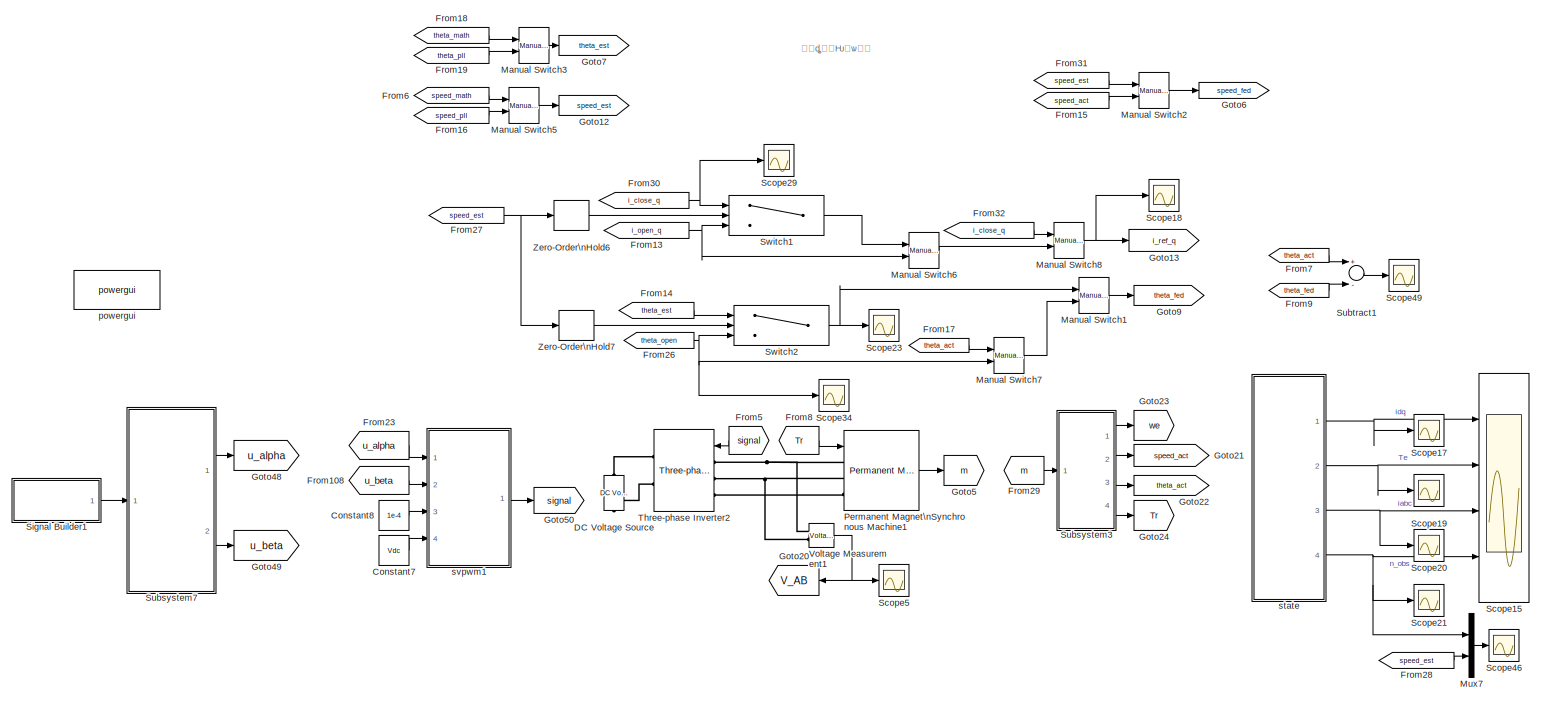
[diagram: root canvas - part 1/4, top center region]
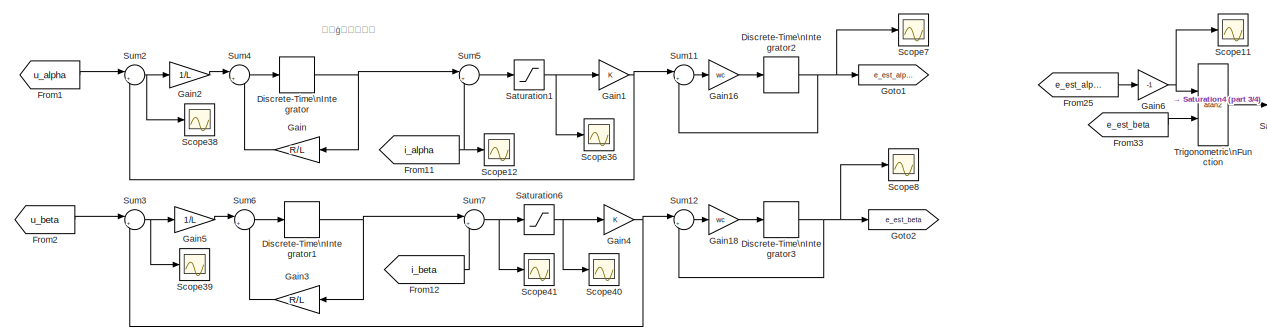
[diagram: root canvas - part 2/4, middle left region]
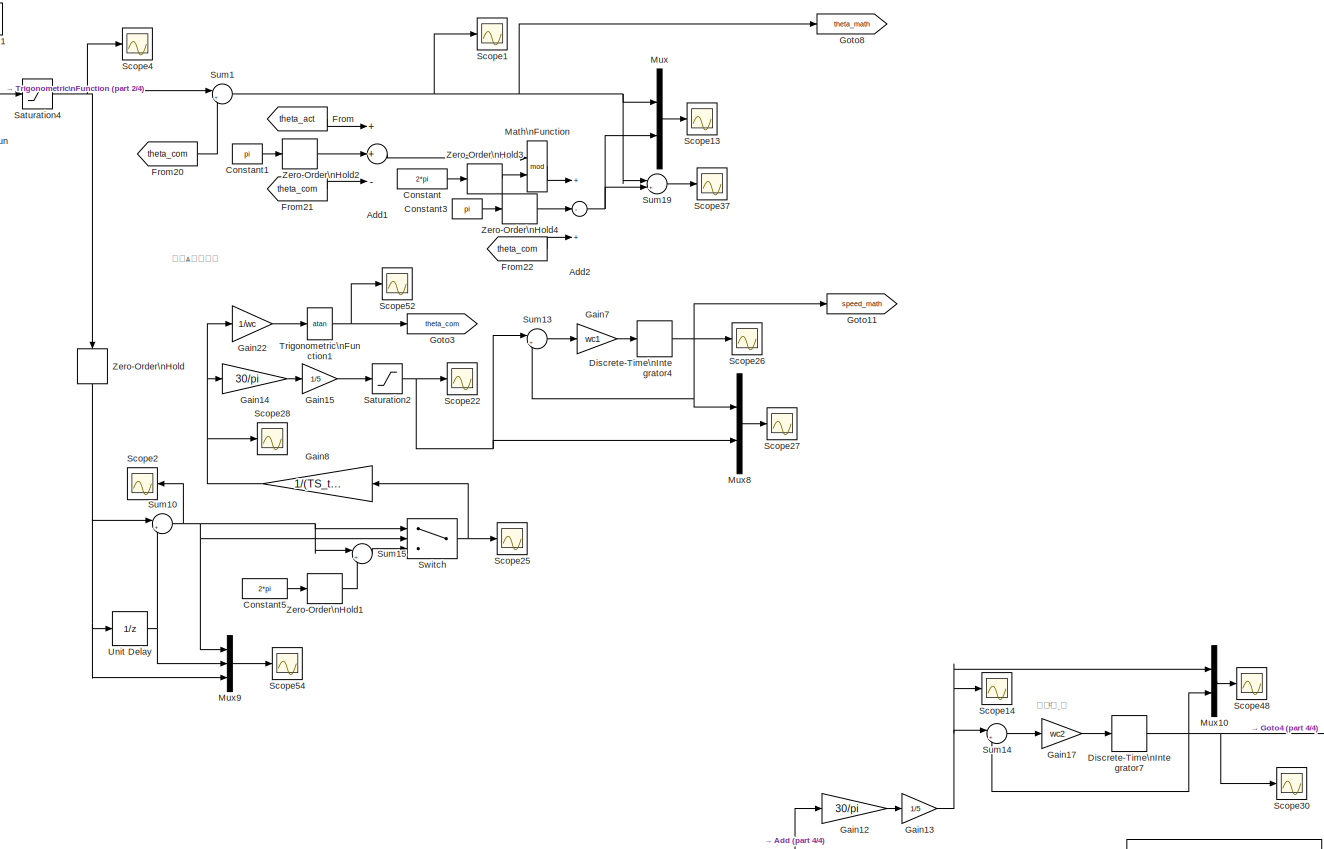
[diagram: root canvas - part 3/4, middle right region]
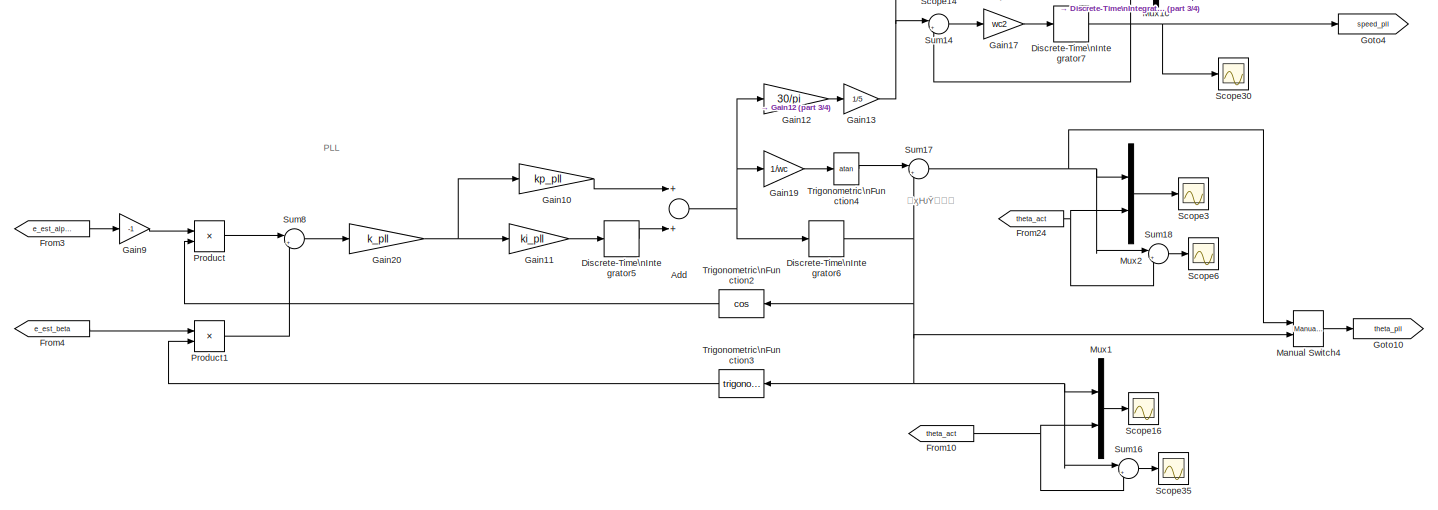
[diagram: root canvas - part 4/4, bottom right region]
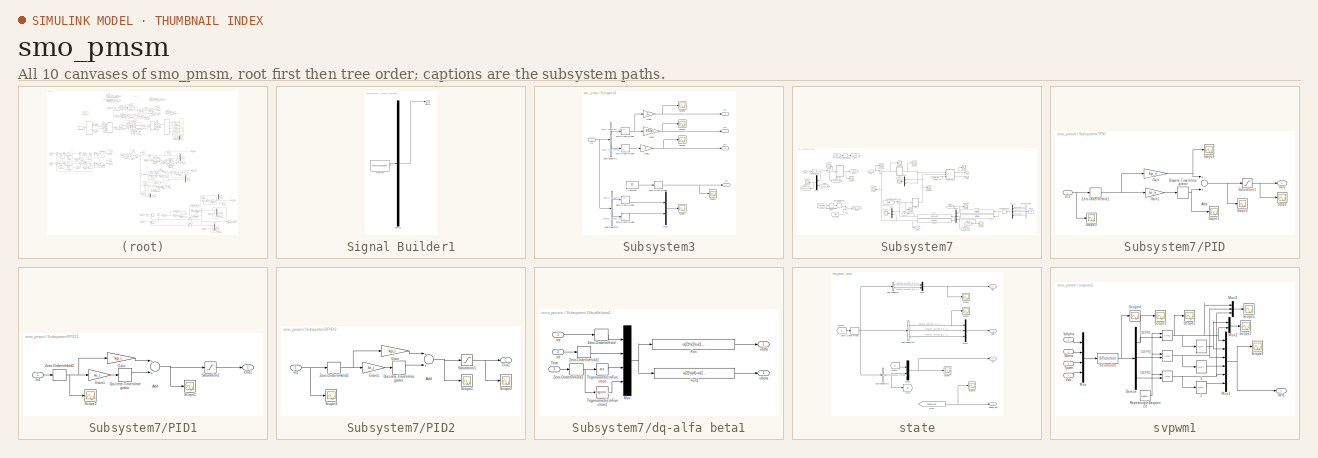
[diagram: thumbnail index - all 10 canvases of the model, root first then tree order]
MODEL smo_pmsm
KIND model
CONFIG InitFcn = parameter
CONFIG PreLoadFcn = parameter
BLOCK [Sum] Add
  InputSameDT = off
  OutDataTypeMode = Inherit via internal rule
  OutDataTypeStr = Inherit: Inherit via internal rule
  Ports = [2, 1]
  SID = 1082
  SaturateOnIntegerOverflow = off
BLOCK [Sum] Add1
  InputSameDT = off
  Inputs = ++-
  OutDataTypeMode = Inherit via internal rule
  OutDataTypeStr = Inherit: Inherit via internal rule
  Ports = [3, 1]
  SID = 1123
  SaturateOnIntegerOverflow = off
BLOCK [Sum] Add2
  InputSameDT = off
  Inputs = +-+
  OutDataTypeMode = Inherit via internal rule
  OutDataTypeStr = Inherit: Inherit via internal rule
  Ports = [3, 1]
  SID = 1124
  SaturateOnIntegerOverflow = off
BLOCK [Constant] Constant
  SID = 643
  Value = 2*pi
BLOCK [Constant] Constant1
  SID = 1117
  Value = pi
BLOCK [Constant] Constant3
  SID = 1118
  Value = pi
BLOCK [Constant] Constant5
  SID = 1057
  Value = 2*pi
BLOCK [Constant] Constant7
  SID = 411
  Value = Vdc
BLOCK [Constant] Constant8
  SID = 412
  Value = 1e-4
BLOCK [Reference] DC Voltage Source  REF=powerlib/Electrical\nSources/DC Voltage Source
  Amplitude = Vdc
  Measurements = Voltage
  Ports = [0, 0, 0, 0, 0, 1, 1]
  SID = 444
  SourceBlock = powerlib/Electrical\nSources/DC Voltage Source
  SourceType = DC Voltage Source
BLOCK [DiscreteIntegrator] Discrete-Time\nIntegrator
  ICPrevOutput = DiscIntNeverNeededParam
  ICPrevScaledInput = DiscIntNeverNeededParam
  Ports = [1, 1]
  SID = 586
  SampleTime = -1
BLOCK [DiscreteIntegrator] Discrete-Time\nIntegrator1
  ICPrevOutput = DiscIntNeverNeededParam
  ICPrevScaledInput = DiscIntNeverNeededParam
  Ports = [1, 1]
  SID = 587
  SampleTime = -1
BLOCK [DiscreteIntegrator] Discrete-Time\nIntegrator2
  ICPrevOutput = DiscIntNeverNeededParam
  ICPrevScaledInput = DiscIntNeverNeededParam
  Ports = [1, 1]
  SID = 990
  SampleTime = -1
BLOCK [DiscreteIntegrator] Discrete-Time\nIntegrator3
  ICPrevOutput = DiscIntNeverNeededParam
  ICPrevScaledInput = DiscIntNeverNeededParam
  Ports = [1, 1]
  SID = 991
  SampleTime = -1
BLOCK [DiscreteIntegrator] Discrete-Time\nIntegrator4
  ICPrevOutput = DiscIntNeverNeededParam
  ICPrevScaledInput = DiscIntNeverNeededParam
  Ports = [1, 1]
  SID = 1059
  SampleTime = TS_time
BLOCK [DiscreteIntegrator] Discrete-Time\nIntegrator5
  ICPrevOutput = DiscIntNeverNeededParam
  ICPrevScaledInput = DiscIntNeverNeededParam
  InitialConditionMode = State only (most efficient)
  Ports = [1, 1]
  SID = 1083
  SampleTime = -1
BLOCK [DiscreteIntegrator] Discrete-Time\nIntegrator6
  ICPrevOutput = DiscIntNeverNeededParam
  ICPrevScaledInput = DiscIntNeverNeededParam
  Ports = [1, 1]
  SID = 1089
  SampleTime = -1
BLOCK [DiscreteIntegrator] Discrete-Time\nIntegrator7
  ICPrevOutput = DiscIntNeverNeededParam
  ICPrevScaledInput = DiscIntNeverNeededParam
  Ports = [1, 1]
  SID = 1108
  SampleTime = TS_time
BLOCK [From] From
  GotoTag = theta_act
  SID = 635
  TagVisibility = global
BLOCK [From] From1
  GotoTag = u_alpha
  SID = 588
  TagVisibility = global
BLOCK [From] From10
  GotoTag = theta_act
  SID = 1094
  TagVisibility = global
BLOCK [From] From108
  GotoTag = u_beta
  SID = 413
  TagVisibility = global
BLOCK [From] From11
  GotoTag = i_alpha
  SID = 589
  TagVisibility = global
BLOCK [From] From12
  GotoTag = i_beta
  SID = 590
  TagVisibility = global
BLOCK [From] From13
  GotoTag = i_open_q
  SID = 1276
  TagVisibility = global
BLOCK [From] From14
  GotoTag = theta_est
  SID = 819
  TagVisibility = global
BLOCK [From] From15
  GotoTag = speed_act
  SID = 1297
  TagVisibility = global
BLOCK [From] From16
  GotoTag = speed_pll
  SID = 1102
  TagVisibility = global
BLOCK [From] From17
  GotoTag = theta_act
  SID = 1294
  TagVisibility = global
BLOCK [From] From18
  GotoTag = theta_math
  SID = 1103
  TagVisibility = global
BLOCK [From] From19
  GotoTag = theta_pll
  SID = 1104
  TagVisibility = global
BLOCK [From] From2
  GotoTag = u_beta
  SID = 591
  TagVisibility = global
BLOCK [From] From20
  GotoTag = theta_com
  SID = 1122
  TagVisibility = global
BLOCK [From] From21
  GotoTag = theta_com
  SID = 1125
  TagVisibility = global
BLOCK [From] From22
  GotoTag = theta_com
  SID = 1126
  TagVisibility = global
BLOCK [From] From23
  GotoTag = u_alpha
  SID = 414
  TagVisibility = global
BLOCK [From] From24
  GotoTag = theta_act
  SID = 1130
  TagVisibility = global
BLOCK [From] From25
  GotoTag = e_est_alpha
  SID = 1307
  TagVisibility = global
BLOCK [From] From26
  GotoTag = theta_open
  SID = 1263
  TagVisibility = global
BLOCK [From] From27
  GotoTag = speed_est
  SID = 1193
  TagVisibility = global
BLOCK [From] From28
  GotoTag = speed_est
  SID = 1228
  TagVisibility = global
BLOCK [From] From29
  GotoTag = m
  SID = 453
  TagVisibility = global
BLOCK [From] From3
  GotoTag = e_est_alpha
  SID = 1074
  TagVisibility = global
BLOCK [From] From30
  GotoTag = i_close_q
  SID = 1277
  TagVisibility = global
BLOCK [From] From31
  GotoTag = speed_est
  SID = 1295
  TagVisibility = global
BLOCK [From] From32
  GotoTag = i_close_q
  SID = 1303
  TagVisibility = global
BLOCK [From] From33
  GotoTag = e_est_beta
  SID = 1308
  TagVisibility = global
BLOCK [From] From4
  GotoTag = e_est_beta
  SID = 1075
  TagVisibility = global
BLOCK [From] From5
  GotoTag = signal
  SID = 445
  TagVisibility = global
BLOCK [From] From6
  GotoTag = speed_math
  SID = 1101
  TagVisibility = global
BLOCK [From] From7
  GotoTag = theta_act
  SID = 1283
  TagVisibility = global
BLOCK [From] From8
  GotoTag = Tr
  SID = 446
  TagVisibility = global
BLOCK [From] From9
  GotoTag = theta_fed
  SID = 1287
  TagVisibility = global
BLOCK [Gain] Gain
  Gain = R/L
  OutDataTypeMode = Inherit via internal rule
  OutDataTypeStr = Inherit: Inherit via internal rule
  ParamDataTypeStr = Inherit: Inherit via internal rule
  ParameterDataTypeMode = Inherit via internal rule
  SID = 592
  SaturateOnIntegerOverflow = off
BLOCK [Gain] Gain1
  Gain = K
  OutDataTypeMode = Inherit via internal rule
  OutDataTypeStr = Inherit: Inherit via internal rule
  ParamDataTypeStr = Inherit: Inherit via internal rule
  ParameterDataTypeMode = Inherit via internal rule
  SID = 593
  SaturateOnIntegerOverflow = off
BLOCK [Gain] Gain10
  Gain = kp_pll
  OutDataTypeMode = Inherit via internal rule
  OutDataTypeStr = Inherit: Inherit via internal rule
  ParamDataTypeStr = Inherit: Inherit via internal rule
  ParameterDataTypeMode = Inherit via internal rule
  SID = 1084
  SaturateOnIntegerOverflow = off
BLOCK [Gain] Gain11
  Gain = ki_pll
  OutDataTypeMode = Inherit via internal rule
  OutDataTypeStr = Inherit: Inherit via internal rule
  ParamDataTypeStr = Inherit: Inherit via internal rule
  ParameterDataTypeMode = Inherit via internal rule
  SID = 1085
  SaturateOnIntegerOverflow = off
BLOCK [Gain] Gain12
  Gain = 30/pi
  OutDataTypeMode = Inherit via internal rule
  OutDataTypeStr = Inherit: Inherit via internal rule
  ParamDataTypeStr = Inherit: Inherit via internal rule
  ParameterDataTypeMode = Inherit via internal rule
  SID = 1090
  SaturateOnIntegerOverflow = off
BLOCK [Gain] Gain13
  Gain = 1/5
  OutDataTypeMode = Inherit via internal rule
  OutDataTypeStr = Inherit: Inherit via internal rule
  ParamDataTypeStr = Inherit: Inherit via internal rule
  ParameterDataTypeMode = Inherit via internal rule
  SID = 1091
  SaturateOnIntegerOverflow = off
BLOCK [Gain] Gain14
  Gain = 30/pi
  OutDataTypeMode = Inherit via internal rule
  OutDataTypeStr = Inherit: Inherit via internal rule
  ParamDataTypeStr = Inherit: Inherit via internal rule
  ParameterDataTypeMode = Inherit via internal rule
  SID = 979
  SaturateOnIntegerOverflow = off
BLOCK [Gain] Gain15
  Gain = 1/5
  OutDataTypeMode = Inherit via internal rule
  OutDataTypeStr = Inherit: Inherit via internal rule
  ParamDataTypeStr = Inherit: Inherit via internal rule
  ParameterDataTypeMode = Inherit via internal rule
  SID = 980
  SaturateOnIntegerOverflow = off
BLOCK [Gain] Gain16
  Gain = wc
  OutDataTypeMode = Inherit via internal rule
  OutDataTypeStr = Inherit: Inherit via internal rule
  ParamDataTypeStr = Inherit: Inherit via internal rule
  ParameterDataTypeMode = Inherit via internal rule
  SID = 988
  SaturateOnIntegerOverflow = off
BLOCK [Gain] Gain17
  Gain = wc2
  OutDataTypeMode = Inherit via internal rule
  OutDataTypeStr = Inherit: Inherit via internal rule
  ParamDataTypeStr = Inherit: Inherit via internal rule
  ParameterDataTypeMode = Inherit via internal rule
  SID = 1109
  SaturateOnIntegerOverflow = off
BLOCK [Gain] Gain18
  Gain = wc
  OutDataTypeMode = Inherit via internal rule
  OutDataTypeStr = Inherit: Inherit via internal rule
  ParamDataTypeStr = Inherit: Inherit via internal rule
  ParameterDataTypeMode = Inherit via internal rule
  SID = 992
  SaturateOnIntegerOverflow = off
BLOCK [Gain] Gain19
  Gain = 1/wc
  OutDataTypeMode = Inherit via internal rule
  OutDataTypeStr = Inherit: Inherit via internal rule
  ParamDataTypeStr = Inherit: Inherit via internal rule
  ParameterDataTypeMode = Inherit via internal rule
  SID = 1127
  SaturateOnIntegerOverflow = off
BLOCK [Gain] Gain2
  Gain = 1/L
  OutDataTypeMode = Inherit via internal rule
  OutDataTypeStr = Inherit: Inherit via internal rule
  ParamDataTypeStr = Inherit: Inherit via internal rule
  ParameterDataTypeMode = Inherit via internal rule
  SID = 594
  SaturateOnIntegerOverflow = off
BLOCK [Gain] Gain20
  Gain = k_pll
  OutDataTypeMode = Inherit via internal rule
  OutDataTypeStr = Inherit: Inherit via internal rule
  ParamDataTypeStr = Inherit: Inherit via internal rule
  ParameterDataTypeMode = Inherit via internal rule
  SID = 1226
  SaturateOnIntegerOverflow = off
BLOCK [Gain] Gain22
  Gain = 1/wc
  OutDataTypeMode = Inherit via internal rule
  OutDataTypeStr = Inherit: Inherit via internal rule
  ParamDataTypeStr = Inherit: Inherit via internal rule
  ParameterDataTypeMode = Inherit via internal rule
  SID = 1037
  SaturateOnIntegerOverflow = off
BLOCK [Gain] Gain3
  Gain = R/L
  OutDataTypeMode = Inherit via internal rule
  OutDataTypeStr = Inherit: Inherit via internal rule
  ParamDataTypeStr = Inherit: Inherit via internal rule
  ParameterDataTypeMode = Inherit via internal rule
  SID = 595
  SaturateOnIntegerOverflow = off
BLOCK [Gain] Gain4
  Gain = K
  OutDataTypeMode = Inherit via internal rule
  OutDataTypeStr = Inherit: Inherit via internal rule
  ParamDataTypeStr = Inherit: Inherit via internal rule
  ParameterDataTypeMode = Inherit via internal rule
  SID = 596
  SaturateOnIntegerOverflow = off
BLOCK [Gain] Gain5
  Gain = 1/L
  OutDataTypeMode = Inherit via internal rule
  OutDataTypeStr = Inherit: Inherit via internal rule
  ParamDataTypeStr = Inherit: Inherit via internal rule
  ParameterDataTypeMode = Inherit via internal rule
  SID = 597
  SaturateOnIntegerOverflow = off
BLOCK [Gain] Gain6
  Gain = -1
  OutDataTypeMode = Inherit via internal rule
  OutDataTypeStr = Inherit: Inherit via internal rule
  ParamDataTypeStr = Inherit: Inherit via internal rule
  ParameterDataTypeMode = Inherit via internal rule
  SID = 598
  SaturateOnIntegerOverflow = off
BLOCK [Gain] Gain7
  Gain = wc1
  OutDataTypeMode = Inherit via internal rule
  OutDataTypeStr = Inherit: Inherit via internal rule
  ParamDataTypeStr = Inherit: Inherit via internal rule
  ParameterDataTypeMode = Inherit via internal rule
  SID = 1060
  SaturateOnIntegerOverflow = off
BLOCK [Gain] Gain8
  Gain = 1/(TS_time)
  OutDataTypeMode = Inherit via internal rule
  OutDataTypeStr = Inherit: Inherit via internal rule
  ParamDataTypeStr = Inherit: Inherit via internal rule
  ParameterDataTypeMode = Inherit via internal rule
  SID = 977
  SaturateOnIntegerOverflow = off
BLOCK [Gain] Gain9
  Gain = -1
  OutDataTypeMode = Inherit via internal rule
  OutDataTypeStr = Inherit: Inherit via internal rule
  ParamDataTypeStr = Inherit: Inherit via internal rule
  ParameterDataTypeMode = Inherit via internal rule
  SID = 1080
  SaturateOnIntegerOverflow = off
BLOCK [Goto] Goto1
  GotoTag = e_est_alpha
  SID = 998
  TagVisibility = global
BLOCK [Goto] Goto10
  GotoTag = theta_pll
  SID = 1098
  TagVisibility = global
BLOCK [Goto] Goto11
  GotoTag = speed_math
  SID = 1100
  TagVisibility = global
BLOCK [Goto] Goto12
  GotoTag = speed_est
  SID = 1106
  TagVisibility = global
BLOCK [Goto] Goto13
  GotoTag = i_ref_q
  SID = 1279
  TagVisibility = global
BLOCK [Goto] Goto2
  GotoTag = e_est_beta
  SID = 999
  TagVisibility = global
BLOCK [Goto] Goto20
  GotoTag = V_AB
  SID = 447
  TagVisibility = global
BLOCK [Goto] Goto21
  GotoTag = speed_act
  SID = 454
  TagVisibility = global
BLOCK [Goto] Goto22
  GotoTag = theta_act
  SID = 455
  TagVisibility = global
BLOCK [Goto] Goto23
  GotoTag = we
  SID = 456
  TagVisibility = global
BLOCK [Goto] Goto24
  GotoTag = Tr
  SID = 457
  TagVisibility = global
BLOCK [Goto] Goto3
  GotoTag = theta_com
  SID = 1121
  TagVisibility = global
BLOCK [Goto] Goto4
  GotoTag = speed_pll
  SID = 1099
  TagVisibility = global
BLOCK [Goto] Goto48
  GotoTag = u_alpha
  SID = 307
  TagVisibility = global
BLOCK [Goto] Goto49
  GotoTag = u_beta
  SID = 308
  TagVisibility = global
BLOCK [Goto] Goto5
  GotoTag = m
  SID = 448
  TagVisibility = global
BLOCK [Goto] Goto50
  GotoTag = signal
  SID = 415
  TagVisibility = global
BLOCK [Goto] Goto6
  GotoTag = speed_fed
  SID = 1296
  TagVisibility = global
BLOCK [Goto] Goto7
  GotoTag = theta_est
  SID = 816
  TagVisibility = global
BLOCK [Goto] Goto8
  GotoTag = theta_math
  SID = 1097
  TagVisibility = global
BLOCK [Goto] Goto9
  GotoTag = theta_fed
  SID = 821
  TagVisibility = global
BLOCK [Reference] Manual Switch1  REF=simulink/Signal\nRouting/Manual Switch
  Ports = [2, 1]
  SID = 1311
  SourceBlock = simulink/Signal\nRouting/Manual Switch
  action = 0
  sw = 1
  varsize = off
BLOCK [Reference] Manual Switch2  REF=simulink/Signal\nRouting/Manual Switch
  Ports = [2, 1]
  SID = 1312
  SourceBlock = simulink/Signal\nRouting/Manual Switch
  action = 0
  sw = 1
  varsize = off
BLOCK [Reference] Manual Switch3  REF=simulink/Signal\nRouting/Manual Switch
  Ports = [2, 1]
  SID = 1313
  SourceBlock = simulink/Signal\nRouting/Manual Switch
  action = 0
  sw = 0
  varsize = off
BLOCK [Reference] Manual Switch4  REF=simulink/Signal\nRouting/Manual Switch
  Ports = [2, 1]
  SID = 1314
  SourceBlock = simulink/Signal\nRouting/Manual Switch
  action = 0
  sw = 1
  varsize = off
BLOCK [Reference] Manual Switch5  REF=simulink/Signal\nRouting/Manual Switch
  Ports = [2, 1]
  SID = 1315
  SourceBlock = simulink/Signal\nRouting/Manual Switch
  action = 0
  sw = 0
  varsize = off
BLOCK [Reference] Manual Switch6  REF=simulink/Signal\nRouting/Manual Switch
  Ports = [2, 1]
  SID = 1316
  SourceBlock = simulink/Signal\nRouting/Manual Switch
  action = 0
  sw = 1
  varsize = off
BLOCK [Reference] Manual Switch7  REF=simulink/Signal\nRouting/Manual Switch
  Ports = [2, 1]
  SID = 1317
  SourceBlock = simulink/Signal\nRouting/Manual Switch
  action = 0
  sw = 1
  varsize = off
BLOCK [Reference] Manual Switch8  REF=simulink/Signal\nRouting/Manual Switch
  Ports = [2, 1]
  SID = 1318
  SourceBlock = simulink/Signal\nRouting/Manual Switch
  action = 0
  sw = 0
  varsize = off
BLOCK [Math] Math\nFunction
  Operator = mod
  Ports = [2, 1]
  SID = 642
BLOCK [Mux] Mux
  DisplayOption = bar
  Inputs = 2
  Ports = [2, 1]
  SID = 644
BLOCK [Mux] Mux1
  DisplayOption = bar
  Inputs = 2
  Ports = [2, 1]
  SID = 1093
BLOCK [Mux] Mux10
  DisplayOption = bar
  Inputs = 2
  Ports = [2, 1]
  SID = 1231
BLOCK [Mux] Mux2
  DisplayOption = bar
  Inputs = 2
  Ports = [2, 1]
  SID = 1131
BLOCK [Mux] Mux7
  DisplayOption = bar
  Inputs = 2
  Ports = [2, 1]
  SID = 1229
BLOCK [Mux] Mux8
  DisplayOption = bar
  Inputs = 2
  Ports = [2, 1]
  SID = 1063
BLOCK [Mux] Mux9
  DisplayOption = bar
  Inputs = 3
  Ports = [3, 1]
  SID = 1041
BLOCK [Reference] Permanent Magnet\nSynchronous Machine1  REF=powerlib/Machines/Permanent Magnet\nSynchronous Machine
  AttributesFormatString = \\n
  Flat = 0
  Flux = 0.093726
  FluxDistribution = Sinusoidal
  Inductance = 0
  InitialConditions = [0,0, 0,0]
  InitialConditions5ph = [0 0 0 0 0 0]
  La = 0.0287
  MachineConstant = Voltage Constant (V_peak L-L / krpm)
  MeasurementBus = off
  Mechanical = [0.001,0,5]
  MechanicalLoad = Torque Tm
  NbPhases = 3
  PolePairs = 3
  Ports = [1, 1, 0, 0, 0, 3]
  PresetModel = No
  RefAngle = Aligned with phase A axis (original Park)
  Resistance = 3
  RotorType = Round
  SID = 581
  ShowDetailedParameters = on
  SourceBlock = powerlib/Machines/Permanent Magnet\nSynchronous Machine
  SourceType = Permanent Magnet Synchronous Machine
  TorqueCst = 0.70294
  TsBlock = -1
  TsPowergui = 0
  VoltageCst = 85
  dqInductances = [0.01,0.02]
BLOCK [Product] Product
  InputSameDT = off
  OutDataTypeMode = Inherit via internal rule
  OutDataTypeStr = Inherit: Inherit via internal rule
  Ports = [2, 1]
  RndMeth = Floor
  SID = 1076
  SaturateOnIntegerOverflow = off
BLOCK [Product] Product1
  InputSameDT = off
  OutDataTypeMode = Inherit via internal rule
  OutDataTypeStr = Inherit: Inherit via internal rule
  Ports = [2, 1]
  RndMeth = Floor
  SID = 1077
  SaturateOnIntegerOverflow = off
BLOCK [Saturate] Saturation1
  LowerLimit = -upper
  SID = 605
  UpperLimit = upper
BLOCK [Saturate] Saturation2
  LowerLimit = -1000
  SID = 1161
  UpperLimit = 5000
BLOCK [Saturate] Saturation4
  LowerLimit = -pi
  SID = 1028
  UpperLimit = pi
BLOCK [Saturate] Saturation6
  LowerLimit = -upper
  SID = 1235
  UpperLimit = upper
BLOCK [Scope] Scope1
  Floating = off
  LimitDataPoints = off
  NumInputPorts = 1
  Ports = [1]
  SID = 623
  SaveName = ScopeData7
  YMax = 700
  YMin = -700
  ZoomMode = xonly
BLOCK [Scope] Scope11
  Floating = off
  LimitDataPoints = off
  NumInputPorts = 1
  Ports = [1]
  SID = 633
  SaveName = ScopeData25
  YMax = 700
  YMin = -700
  ZoomMode = xonly
BLOCK [Scope] Scope12
  Floating = off
  LimitDataPoints = off
  NumInputPorts = 1
  Ports = [1]
  SID = 634
  SaveName = ScopeData31
  YMax = 700
  YMin = -700
  ZoomMode = yonly
BLOCK [Scope] Scope13
  Floating = off
  LimitDataPoints = off
  NumInputPorts = 1
  Ports = [1]
  SID = 645
  SaveName = ScopeData32
  YMax = 700
  YMin = -700
  ZoomMode = xonly
BLOCK [Scope] Scope14
  Floating = off
  LimitDataPoints = off
  NumInputPorts = 1
  Ports = [1]
  SID = 1092
  SaveName = ScopeData33
  YMax = 700
  YMin = -700
BLOCK [Scope] Scope15
  DataFormat = StructureWithTime
  Floating = off
  LimitDataPoints = off
  NumInputPorts = 4
  Ports = [4]
  SID = 458
  SaveName = ScopeData20
  TimeRange = 1.5
  YMax = 15~35~60~900
  YMin = -17.5~-5~-80~-400
  ZoomMode = xonly
BLOCK [Scope] Scope16
  Floating = off
  LimitDataPoints = off
  NumInputPorts = 1
  Ports = [1]
  SID = 1095
  SaveName = ScopeData34
  YMax = 700
  YMin = -700
BLOCK [Scope] Scope17
  Floating = off
  LimitDataPoints = off
  NumInputPorts = 1
  Ports = [1]
  SID = 459
  SaveName = ScopeData18
  YMax = 700
  YMin = -700
BLOCK [Scope] Scope18
  Floating = off
  LimitDataPoints = off
  NumInputPorts = 1
  Ports = [1]
  SID = 826
  SaveName = ScopeData35
  YMax = 700
  YMin = -700
BLOCK [Scope] Scope19
  Floating = off
  LimitDataPoints = off
  NumInputPorts = 1
  Ports = [1]
  SID = 460
  SaveName = ScopeData19
  TimeRange = 1.5
  YMax = 700
  YMin = -700
  ZoomMode = yonly
BLOCK [Scope] Scope2
  Floating = off
  LimitDataPoints = off
  NumInputPorts = 1
  Ports = [1]
  SID = 1073
  SaveName = ScopeData10
  YMax = 700
  YMin = -700
  ZoomMode = xonly
BLOCK [Scope] Scope20
  Floating = off
  LimitDataPoints = off
  NumInputPorts = 1
  Ports = [1]
  SID = 461
  SaveName = ScopeData1
  YMax = 0.04
  YMin = -0.04
  ZoomMode = xonly
BLOCK [Scope] Scope21
  Floating = off
  LimitDataPoints = off
  NumInputPorts = 1
  Ports = [1]
  SID = 462
  SaveName = ScopeData4
  TimeRange = 0.5
  YMax = 4003
  YMin = 4000
BLOCK [Scope] Scope22
  Floating = off
  LimitDataPoints = off
  NumInputPorts = 1
  Ports = [1]
  SID = 978
  SaveName = ScopeData36
  YMax = 700
  YMin = -700
  ZoomMode = yonly
BLOCK [Scope] Scope23
  Floating = off
  LimitDataPoints = off
  NumInputPorts = 1
  Ports = [1]
  SID = 827
  SaveName = ScopeData39
  YMax = 700
  YMin = -700
BLOCK [Scope] Scope25
  Floating = off
  LimitDataPoints = off
  NumInputPorts = 1
  Ports = [1]
  SID = 1058
  SaveName = ScopeData41
  YMax = 700
  YMin = -700
  ZoomMode = yonly
BLOCK [Scope] Scope26
  Floating = off
  LimitDataPoints = off
  NumInputPorts = 1
  Ports = [1]
  SID = 1062
  SaveName = ScopeData42
  YMax = 700
  YMin = -700
BLOCK [Scope] Scope27
  Floating = off
  LimitDataPoints = off
  NumInputPorts = 1
  Ports = [1]
  SID = 1064
  SaveName = ScopeData43
  YMax = 700
  YMin = -700
  ZoomMode = yonly
BLOCK [Scope] Scope28
  Floating = off
  LimitDataPoints = off
  NumInputPorts = 1
  Ports = [1]
  SID = 1107
  SaveName = ScopeData44
  YMax = 700
  YMin = -700
  ZoomMode = yonly
BLOCK [Scope] Scope29
  Floating = off
  LimitDataPoints = off
  NumInputPorts = 1
  Ports = [1]
  SID = 1281
  SaveName = ScopeData45
  YMax = 700
  YMin = -700
BLOCK [Scope] Scope3
  Floating = off
  LimitDataPoints = off
  NumInputPorts = 1
  Ports = [1]
  SID = 1132
  SaveName = ScopeData11
  YMax = 700
  YMin = -700
  ZoomMode = yonly
BLOCK [Scope] Scope30
  Floating = off
  LimitDataPoints = off
  NumInputPorts = 1
  Ports = [1]
  SID = 1111
  SaveName = ScopeData46
  YMax = 700
  YMin = -700
BLOCK [Scope] Scope34
  Floating = off
  LimitDataPoints = off
  NumInputPorts = 1
  Ports = [1]
  SID = 1282
  SaveName = ScopeData74
  YMax = 700
  YMin = -700
BLOCK [Scope] Scope35
  Floating = off
  LimitDataPoints = off
  NumInputPorts = 1
  Ports = [1]
  SID = 1114
  SaveName = ScopeData52
  YMax = 700
  YMin = -700
BLOCK [Scope] Scope36
  Floating = off
  LimitDataPoints = off
  NumInputPorts = 1
  Ports = [1]
  SID = 937
  SaveName = ScopeData53
  YMax = 700
  YMin = -700
  ZoomMode = xonly
BLOCK [Scope] Scope37
  Floating = off
  LimitDataPoints = off
  NumInputPorts = 1
  Ports = [1]
  SID = 1120
  SaveName = ScopeData54
  YMax = 700
  YMin = -700
  ZoomMode = xonly
BLOCK [Scope] Scope38
  Floating = off
  LimitDataPoints = off
  NumInputPorts = 1
  Ports = [1]
  SID = 940
  SaveName = ScopeData55
  YMax = 700
  YMin = -700
BLOCK [Scope] Scope39
  Floating = off
  LimitDataPoints = off
  NumInputPorts = 1
  Ports = [1]
  SID = 941
  SaveName = ScopeData56
  YMax = 700
  YMin = -700
BLOCK [Scope] Scope4
  Floating = off
  LimitDataPoints = off
  NumInputPorts = 1
  Ports = [1]
  SID = 627
  SaveName = ScopeData13
  YMax = 700
  YMin = -700
  ZoomMode = xonly
BLOCK [Scope] Scope40
  Floating = off
  LimitDataPoints = off
  NumInputPorts = 1
  Ports = [1]
  SID = 942
  SaveName = ScopeData57
  YMax = 700
  YMin = -700
  ZoomMode = xonly
BLOCK [Scope] Scope41
  Floating = off
  LimitDataPoints = off
  NumInputPorts = 1
  Ports = [1]
  SID = 943
  SaveName = ScopeData58
  YMax = 700
  YMin = -700
  ZoomMode = xonly
BLOCK [Scope] Scope46
  Floating = off
  LimitDataPoints = off
  NumInputPorts = 1
  Ports = [1]
  SID = 1230
  SaveName = ScopeData63
  TimeRange = 0.5
  YMax = 4003
  YMin = 4000
BLOCK [Scope] Scope48
  Floating = off
  LimitDataPoints = off
  NumInputPorts = 1
  Ports = [1]
  SID = 1232
  SaveName = ScopeData73
  YMax = 700
  YMin = -700
BLOCK [Scope] Scope49
  Floating = off
  LimitDataPoints = off
  NumInputPorts = 1
  Ports = [1]
  SID = 1286
  SaveName = ScopeData80
  YMax = 700
  YMin = -700
BLOCK [Scope] Scope5
  Floating = off
  LimitDataPoints = off
  NumInputPorts = 1
  Ports = [1]
  SID = 450
  SaveName = ScopeData78
  YMax = 700
  YMin = -700
  ZoomMode = xonly
BLOCK [Scope] Scope52
  Floating = off
  LimitDataPoints = off
  NumInputPorts = 1
  Ports = [1]
  SID = 1036
  SaveName = ScopeData77
  YMax = 700
  YMin = -700
  ZoomMode = yonly
BLOCK [Scope] Scope54
  Floating = off
  LimitDataPoints = off
  NumInputPorts = 1
  Ports = [1]
  SID = 1043
  SaveName = ScopeData81
  YMax = 700
  YMin = -700
  ZoomMode = xonly
BLOCK [Scope] Scope6
  Floating = off
  LimitDataPoints = off
  NumInputPorts = 1
  Ports = [1]
  SID = 1133
  SaveName = ScopeData14
  YMax = 700
  YMin = -700
BLOCK [Scope] Scope7
  Floating = off
  LimitDataPoints = off
  NumInputPorts = 1
  Ports = [1]
  SID = 1309
  SaveName = ScopeData15
  YMax = 700
  YMin = -700
  ZoomMode = xonly
BLOCK [Scope] Scope8
  Floating = off
  LimitDataPoints = off
  NumInputPorts = 1
  Ports = [1]
  SID = 1310
  SaveName = ScopeData16
  YMax = 700
  YMin = -700
  ZoomMode = xonly
BLOCK [SubSystem] Signal Builder1
  ClipboardFcn = sigbuilder_block('clipboard');
  CloseFcn = sigbuilder_block('close');
  CopyFcn = sigbuilder_block('copy');
  DeleteFcn = sigbuilder_block('delete');
  FunctionWithSeparateData = off
  LoadFcn = sigbuilder_block('load');
  MaskDescription = Simulink:masks:SigbuilderBlock_MD
  MaskDisplay = plot(0,0,100,100,[10,10,40,40,10],[80,20,20,80,80],[40,10],[50,50], [40,27,10],[65,72,56],[40,25,25,10],[28,28,43,43]);
  MaskHideContents = on
  MaskIconFrame = on
  MaskIconOpaque = off
  MaskIconRotate = port
  MaskIconUnits = autoscale
  MaskInitialization = if ~strcmp(get_param(bdroot(gcbh),'SimulationStatus'),'stopped') tuvar = sigbuilder_block('maskInit'); end
  MaskPortRotate = default
  MaskSelfModifiable = on
  MaskType = Sigbuilder block
  MinAlgLoopOccurrences = off
  ModelCloseFcn = sigbuilder_block('modelClose');
  NameChangeFcn = sigbuilder_block('namechange');
  Opaque = off
  OpenFcn = sigbuilder_block('open',[437.25 199.5 550.5 399.75 ]);
  Ports = [0, 1]
  PreSaveFcn = sigbuilder_block('preSave');
  PropExecContextOutsideSubsystem = off
  RTWSystemCode = Auto
  RequestExecContextInheritance = off
  SID = 1306
  StartFcn = sigbuilder_block('start');
  StopFcn = sigbuilder_block('stop');
  Tag = STV Subsys
BLOCK [Demux] Signal Builder1/Demux
  Outputs = 1
  Ports = [1, 1]
  SID = 1
  Tag = STV Demux
BLOCK [FromWorkspace] Signal Builder1/FromWs
  SID = 2
  SampleTime = 0
  SigBuilderData = DataTag0
  Tag = STV FromWs
  VariableName = tuvar
  VnvData = DataTag1
  ZeroCross = on
BLOCK [Outport] Signal Builder1/Signal 1
  IconDisplay = Port number
  SID = 3
  Tag = STV Outport
BLOCK [SubSystem] Subsystem3
  FunctionWithSeparateData = off
  MaskHideContents = off
  MinAlgLoopOccurrences = off
  Opaque = off
  Ports = [1, 4]
  PropExecContextOutsideSubsystem = off
  RTWSystemCode = Auto
  RequestExecContextInheritance = off
  SID = 463
BLOCK [BusSelector] Subsystem3/Bus\nSelector1
  OutputSignals = Rotor speed wm (rad/s),Rotor angle thetam (rad)
  Ports = [1, 2]
  SID = 465
BLOCK [BusSelector] Subsystem3/Bus\nSelector2
  OutputSignals = Stator voltage Vs_d (V),Stator voltage Vs_q (V)
  Ports = [1, 2]
  SID = 466
BLOCK [Constant] Subsystem3/Constant
  SID = 467
  Value = 0
BLOCK [Gain] Subsystem3/Gain1
  Gain = 5
  OutDataTypeMode = Inherit via internal rule
  OutDataTypeStr = Inherit: Inherit via internal rule
  ParamDataTypeStr = Inherit: Inherit via internal rule
  ParameterDataTypeMode = Inherit via internal rule
  SID = 468
  SaturateOnIntegerOverflow = off
BLOCK [Gain] Subsystem3/Gain2
  Gain = 5
  OutDataTypeMode = Inherit via internal rule
  OutDataTypeStr = Inherit: Inherit via internal rule
  ParamDataTypeStr = Inherit: Inherit via internal rule
  ParameterDataTypeMode = Inherit via internal rule
  SID = 469
  SaturateOnIntegerOverflow = off
BLOCK [Gain] Subsystem3/Gain3
  Gain = 30/pi
  OutDataTypeMode = Inherit via internal rule
  OutDataTypeStr = Inherit: Inherit via internal rule
  ParamDataTypeStr = Inherit: Inherit via internal rule
  ParameterDataTypeMode = Inherit via internal rule
  SID = 470
  SaturateOnIntegerOverflow = off
BLOCK [Inport] Subsystem3/In1
  IconDisplay = Port number
  SID = 464
BLOCK [Mux] Subsystem3/Mux1
  DisplayOption = bar
  Inputs = 2
  Ports = [2, 1]
  SID = 471
BLOCK [Scope] Subsystem3/Scope1
  Floating = off
  LimitDataPoints = off
  NumInputPorts = 1
  Ports = [1]
  SID = 472
  SaveName = ScopeData9
  YMax = 700
  YMin = -500
BLOCK [Scope] Subsystem3/Scope2
  Floating = off
  LimitDataPoints = off
  NumInputPorts = 1
  Ports = [1]
  SID = 473
  SaveName = ScopeData149
  YMax = 400
  YMin = -25
BLOCK [Scope] Subsystem3/Scope3
  Floating = off
  LimitDataPoints = off
  NumInputPorts = 1
  Ports = [1]
  SID = 474
  SaveName = ScopeData79
  YMax = 191.5
  YMin = 185.5
BLOCK [Scope] Subsystem3/Scope4
  Floating = off
  LimitDataPoints = off
  NumInputPorts = 1
  Ports = [1]
  SID = 475
  SaveName = ScopeData88
  YMax = 400
  YMin = -25
BLOCK [Scope] Subsystem3/Scope5
  Floating = off
  LimitDataPoints = off
  NumInputPorts = 1
  Ports = [1]
  SID = 476
  SaveName = ScopeData90
  YMax = 202.5
  YMin = 195
  ZoomMode = yonly
BLOCK [Outport] Subsystem3/Tr1
  IconDisplay = Port number
  SID = 482
BLOCK [Outport] Subsystem3/Tr2
  IconDisplay = Port number
  Port = 2
  SID = 483
BLOCK [Outport] Subsystem3/Tr3
  IconDisplay = Port number
  Port = 3
  SID = 484
BLOCK [Outport] Subsystem3/Tr4
  IconDisplay = Port number
  Port = 4
  SID = 485
BLOCK [ZeroOrderHold] Subsystem3/Zero-Order\nHold1
  SID = 477
  SampleTime = TS
BLOCK [ZeroOrderHold] Subsystem3/Zero-Order\nHold2
  SID = 478
  SampleTime = TS
BLOCK [ZeroOrderHold] Subsystem3/Zero-Order\nHold3
  SID = 479
  SampleTime = TS
BLOCK [ZeroOrderHold] Subsystem3/Zero-Order\nHold4
  SID = 480
  SampleTime = TS
BLOCK [ZeroOrderHold] Subsystem3/Zero-Order\nHold5
  SID = 481
  SampleTime = TS
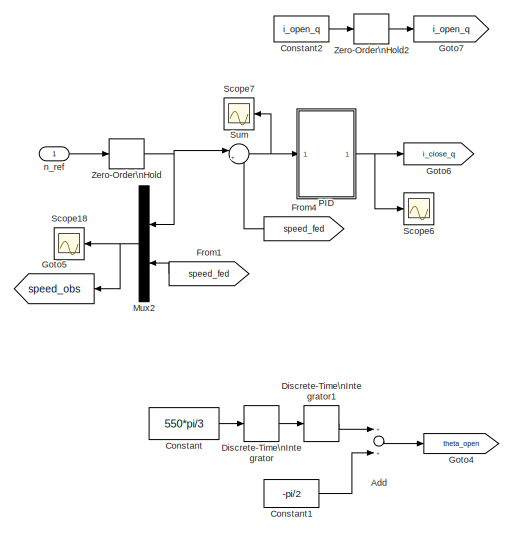
[diagram: Subsystem7 - part 1/2, left side, full height]
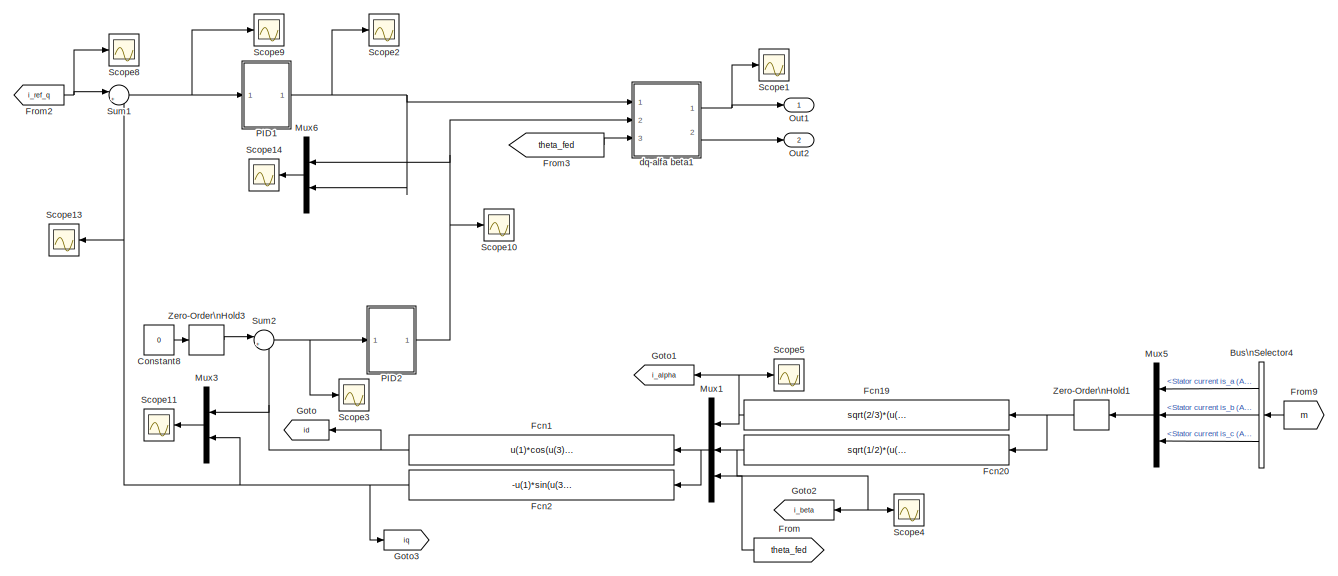
[diagram: Subsystem7 - part 2/2, center side, full height]
BLOCK [SubSystem] Subsystem7
  FunctionWithSeparateData = off
  MaskHideContents = off
  MinAlgLoopOccurrences = off
  Opaque = off
  Ports = [1, 2]
  PropExecContextOutsideSubsystem = off
  RTWSystemCode = Auto
  RequestExecContextInheritance = off
  SID = 310
BLOCK [Sum] Subsystem7/Add
  InputSameDT = off
  OutDataTypeMode = Inherit via internal rule
  OutDataTypeStr = Inherit: Inherit via internal rule
  Ports = [2, 1]
  SID = 1261
  SaturateOnIntegerOverflow = off
BLOCK [BusSelector] Subsystem7/Bus\nSelector4
  OutputSignals = Stator current is_a (A),Stator current is_b (A),Stator current is_c (A)
  Ports = [1, 3]
  SID = 520
BLOCK [Constant] Subsystem7/Constant
  SID = 1257
  Value = 550*pi/3
BLOCK [Constant] Subsystem7/Constant1
  SID = 1260
  Value = -pi/2
BLOCK [Constant] Subsystem7/Constant2
  SID = 1266
  Value = i_open_q
BLOCK [Constant] Subsystem7/Constant8
  SID = 312
  Value = 0
BLOCK [DiscreteIntegrator] Subsystem7/Discrete-Time\nIntegrator
  ICPrevOutput = DiscIntNeverNeededParam
  ICPrevScaledInput = DiscIntNeverNeededParam
  InitialConditionMode = State only (most efficient)
  Ports = [1, 1]
  SID = 1258
  SampleTime = -1
BLOCK [DiscreteIntegrator] Subsystem7/Discrete-Time\nIntegrator1
  ICPrevOutput = DiscIntNeverNeededParam
  ICPrevScaledInput = DiscIntNeverNeededParam
  InitialConditionMode = State only (most efficient)
  Ports = [1, 1]
  SID = 1259
  SampleTime = -1
BLOCK [Fcn] Subsystem7/Fcn1
  Expr = u(1)*cos(u(3))+u(2)*sin(u(3))
  SID = 525
BLOCK [Fcn] Subsystem7/Fcn19
  Expr = sqrt(2/3)*(u(1)-u(2)/2-u(3)/2)
  SID = 521
BLOCK [Fcn] Subsystem7/Fcn2
  Expr = -u(1)*sin(u(3))+u(2)*cos(u(3))
  SID = 526
BLOCK [Fcn] Subsystem7/Fcn20
  Expr = sqrt(1/2)*(u(2)-u(3))
  SID = 522
BLOCK [From] Subsystem7/From
  GotoTag = theta_fed
  SID = 313
  TagVisibility = global
BLOCK [From] Subsystem7/From1
  GotoTag = speed_fed
  SID = 825
  TagVisibility = global
BLOCK [From] Subsystem7/From2
  GotoTag = i_ref_q
  SID = 1275
  TagVisibility = global
BLOCK [From] Subsystem7/From3
  GotoTag = theta_fed
  SID = 316
  TagVisibility = global
BLOCK [From] Subsystem7/From4
  GotoTag = speed_fed
  SID = 824
  TagVisibility = global
BLOCK [From] Subsystem7/From9
  GotoTag = m
  SID = 317
  TagVisibility = global
BLOCK [Goto] Subsystem7/Goto
  GotoTag = id
  SID = 318
  TagVisibility = global
BLOCK [Goto] Subsystem7/Goto1
  GotoTag = i_alpha
  SID = 529
  TagVisibility = global
BLOCK [Goto] Subsystem7/Goto2
  GotoTag = i_beta
  SID = 530
  TagVisibility = global
BLOCK [Goto] Subsystem7/Goto3
  GotoTag = iq
  SID = 319
  TagVisibility = global
BLOCK [Goto] Subsystem7/Goto4
  GotoTag = theta_open
  SID = 1262
  TagVisibility = global
BLOCK [Goto] Subsystem7/Goto5
  GotoTag = speed_obs
  SID = 583
  TagVisibility = global
BLOCK [Goto] Subsystem7/Goto6
  GotoTag = i_close_q
  SID = 1272
  TagVisibility = global
BLOCK [Goto] Subsystem7/Goto7
  GotoTag = i_open_q
  SID = 1273
  TagVisibility = global
BLOCK [Mux] Subsystem7/Mux1
  DisplayOption = bar
  Inputs = 3
  Ports = [3, 1]
  SID = 524
BLOCK [Mux] Subsystem7/Mux2
  DisplayOption = bar
  Inputs = 2
  Ports = [2, 1]
  SID = 321
BLOCK [Mux] Subsystem7/Mux3
  DisplayOption = bar
  Inputs = 2
  Ports = [2, 1]
  SID = 322
BLOCK [Mux] Subsystem7/Mux5
  DisplayOption = bar
  Inputs = 3
  Ports = [3, 1]
  SID = 523
BLOCK [Mux] Subsystem7/Mux6
  DisplayOption = bar
  Inputs = 2
  Ports = [2, 1]
  SID = 323
BLOCK [Outport] Subsystem7/Out1
  IconDisplay = Port number
  SID = 406
BLOCK [Outport] Subsystem7/Out2
  IconDisplay = Port number
  Port = 2
  SID = 407
BLOCK [SubSystem] Subsystem7/PID
  FunctionWithSeparateData = off
  MaskHideContents = off
  MinAlgLoopOccurrences = off
  Opaque = off
  Ports = [1, 1]
  PropExecContextOutsideSubsystem = off
  RTWSystemCode = Auto
  RequestExecContextInheritance = off
  SID = 324
BLOCK [Sum] Subsystem7/PID/Add
  InputSameDT = off
  OutDataTypeMode = Inherit via internal rule
  OutDataTypeStr = Inherit: Inherit via internal rule
  Ports = [2, 1]
  SID = 326
  SaturateOnIntegerOverflow = off
BLOCK [DiscreteIntegrator] Subsystem7/PID/Discrete-Time\nIntegrator
  ICPrevOutput = DiscIntNeverNeededParam
  ICPrevScaledInput = DiscIntNeverNeededParam
  InitialConditionMode = State only (most efficient)
  Ports = [1, 1]
  SID = 327
  SampleTime = -1
BLOCK [Gain] Subsystem7/PID/Gain
  Gain = kp_v
  OutDataTypeMode = Inherit via internal rule
  OutDataTypeStr = Inherit: Inherit via internal rule
  ParamDataTypeStr = Inherit: Inherit via internal rule
  ParameterDataTypeMode = Inherit via internal rule
  SID = 328
  SaturateOnIntegerOverflow = off
BLOCK [Gain] Subsystem7/PID/Gain1
  Gain = ki_v
  OutDataTypeMode = Inherit via internal rule
  OutDataTypeStr = Inherit: Inherit via internal rule
  ParamDataTypeStr = Inherit: Inherit via internal rule
  ParameterDataTypeMode = Inherit via internal rule
  SID = 329
  SaturateOnIntegerOverflow = off
BLOCK [Inport] Subsystem7/PID/In1
  IconDisplay = Port number
  SID = 325
BLOCK [Outport] Subsystem7/PID/Out1
  IconDisplay = Port number
  SID = 337
BLOCK [Saturate] Subsystem7/PID/Saturation1
  LowerLimit = -2
  SID = 1071
  UpperLimit = 3
BLOCK [Scope] Subsystem7/PID/Scope
  Floating = off
  LimitDataPoints = off
  NumInputPorts = 1
  Ports = [1]
  SID = 331
  SaveName = ScopeData12
  ZoomMode = yonly
BLOCK [Scope] Subsystem7/PID/Scope1
  Floating = off
  LimitDataPoints = off
  NumInputPorts = 1
  Ports = [1]
  SID = 332
  SaveName = ScopeData27
BLOCK [Scope] Subsystem7/PID/Scope2
  Floating = off
  LimitDataPoints = off
  NumInputPorts = 1
  Ports = [1]
  SID = 333
  SaveName = ScopeData68
  ZoomMode = yonly
BLOCK [Scope] Subsystem7/PID/Scope3
  Floating = off
  LimitDataPoints = off
  NumInputPorts = 1
  Ports = [1]
  SID = 334
  SaveName = ScopeData69
  ZoomMode = yonly
BLOCK [Scope] Subsystem7/PID/Scope4
  Floating = off
  LimitDataPoints = off
  NumInputPorts = 1
  Ports = [1]
  SID = 335
  SaveName = ScopeData87
  ZoomMode = yonly
BLOCK [ZeroOrderHold] Subsystem7/PID/Zero-Order\nHold1
  SID = 336
  SampleTime = TS
BLOCK [SubSystem] Subsystem7/PID1
  FunctionWithSeparateData = off
  MaskHideContents = off
  MinAlgLoopOccurrences = off
  Opaque = off
  Ports = [1, 1]
  PropExecContextOutsideSubsystem = off
  RTWSystemCode = Auto
  RequestExecContextInheritance = off
  SID = 338
BLOCK [Sum] Subsystem7/PID1/Add
  InputSameDT = off
  OutDataTypeMode = Inherit via internal rule
  OutDataTypeStr = Inherit: Inherit via internal rule
  Ports = [2, 1]
  SID = 340
  SaturateOnIntegerOverflow = off
BLOCK [DiscreteIntegrator] Subsystem7/PID1/Discrete-Time\nIntegrator
  ICPrevOutput = DiscIntNeverNeededParam
  ICPrevScaledInput = DiscIntNeverNeededParam
  InitialConditionMode = State only (most efficient)
  Ports = [1, 1]
  SID = 341
  SampleTime = -1
BLOCK [Gain] Subsystem7/PID1/Gain
  Gain = kp_i
  OutDataTypeMode = Inherit via internal rule
  OutDataTypeStr = Inherit: Inherit via internal rule
  ParamDataTypeStr = Inherit: Inherit via internal rule
  ParameterDataTypeMode = Inherit via internal rule
  SID = 342
  SaturateOnIntegerOverflow = off
BLOCK [Gain] Subsystem7/PID1/Gain1
  Gain = ki_i
  OutDataTypeMode = Inherit via internal rule
  OutDataTypeStr = Inherit: Inherit via internal rule
  ParamDataTypeStr = Inherit: Inherit via internal rule
  ParameterDataTypeMode = Inherit via internal rule
  SID = 343
  SaturateOnIntegerOverflow = off
BLOCK [Inport] Subsystem7/PID1/In1
  IconDisplay = Port number
  SID = 339
BLOCK [Outport] Subsystem7/PID1/Out1
  IconDisplay = Port number
  SID = 348
BLOCK [Saturate] Subsystem7/PID1/Saturation1
  LowerLimit = -500
  SID = 344
  UpperLimit = 500
BLOCK [Scope] Subsystem7/PID1/Scope1
  Floating = off
  LimitDataPoints = off
  NumInputPorts = 1
  Ports = [1]
  SID = 345
  SaveName = ScopeData64
  ZoomMode = yonly
BLOCK [Scope] Subsystem7/PID1/Scope3
  Floating = off
  LimitDataPoints = off
  NumInputPorts = 1
  Ports = [1]
  SID = 346
  SaveName = ScopeData65
  ZoomMode = yonly
BLOCK [ZeroOrderHold] Subsystem7/PID1/Zero-Order\nHold2
  SID = 347
  SampleTime = TS
BLOCK [SubSystem] Subsystem7/PID2
  FunctionWithSeparateData = off
  MaskHideContents = off
  MinAlgLoopOccurrences = off
  Opaque = off
  Ports = [1, 1]
  PropExecContextOutsideSubsystem = off
  RTWSystemCode = Auto
  RequestExecContextInheritance = off
  SID = 349
BLOCK [Sum] Subsystem7/PID2/Add
  InputSameDT = off
  OutDataTypeMode = Inherit via internal rule
  OutDataTypeStr = Inherit: Inherit via internal rule
  Ports = [2, 1]
  SID = 351
  SaturateOnIntegerOverflow = off
BLOCK [DiscreteIntegrator] Subsystem7/PID2/Discrete-Time\nIntegrator
  ICPrevOutput = DiscIntNeverNeededParam
  ICPrevScaledInput = DiscIntNeverNeededParam
  InitialConditionMode = State only (most efficient)
  Ports = [1, 1]
  SID = 352
  SampleTime = -1
BLOCK [Gain] Subsystem7/PID2/Gain
  Gain = kp_i
  OutDataTypeMode = Inherit via internal rule
  OutDataTypeStr = Inherit: Inherit via internal rule
  ParamDataTypeStr = Inherit: Inherit via internal rule
  ParameterDataTypeMode = Inherit via internal rule
  SID = 353
  SaturateOnIntegerOverflow = off
BLOCK [Gain] Subsystem7/PID2/Gain1
  Gain = ki_i
  OutDataTypeMode = Inherit via internal rule
  OutDataTypeStr = Inherit: Inherit via internal rule
  ParamDataTypeStr = Inherit: Inherit via internal rule
  ParameterDataTypeMode = Inherit via internal rule
  SID = 354
  SaturateOnIntegerOverflow = off
BLOCK [Inport] Subsystem7/PID2/In1
  IconDisplay = Port number
  SID = 350
BLOCK [Outport] Subsystem7/PID2/Out1
  IconDisplay = Port number
  SID = 359
BLOCK [Saturate] Subsystem7/PID2/Saturation1
  LowerLimit = -500
  SID = 1250
  UpperLimit = 500
BLOCK [Scope] Subsystem7/PID2/Scope1
  Floating = off
  LimitDataPoints = off
  NumInputPorts = 1
  Ports = [1]
  SID = 355
  SaveName = ScopeData67
  YMax = -115
  YMin = -185
  ZoomMode = yonly
BLOCK [Scope] Subsystem7/PID2/Scope2
  Floating = off
  LimitDataPoints = off
  NumInputPorts = 1
  Ports = [1]
  SID = 356
  SaveName = ScopeData66
  ZoomMode = yonly
BLOCK [Scope] Subsystem7/PID2/Scope3
  Floating = off
  LimitDataPoints = off
  NumInputPorts = 1
  Ports = [1]
  SID = 357
  SaveName = ScopeData70
  ZoomMode = yonly
BLOCK [ZeroOrderHold] Subsystem7/PID2/Zero-Order\nHold2
  SID = 358
  SampleTime = TS
BLOCK [Scope] Subsystem7/Scope1
  Floating = off
  LimitDataPoints = off
  NumInputPorts = 1
  Ports = [1]
  SID = 360
  SaveName = ScopeData37
  ZoomMode = xonly
BLOCK [Scope] Subsystem7/Scope10
  Floating = off
  LimitDataPoints = off
  NumInputPorts = 1
  Ports = [1]
  SID = 361
  SaveName = ScopeData30
  ZoomMode = yonly
BLOCK [Scope] Subsystem7/Scope11
  DataFormat = StructureWithTime
  Floating = off
  LimitDataPoints = off
  NumInputPorts = 1
  Ports = [1]
  SID = 362
  SampleTime = 0
  SaveName = ScopeData71
  TimeRange = 1.7
  YMax = 17.5
  YMin = -15
  ZoomMode = yonly
BLOCK [Scope] Subsystem7/Scope13
  Floating = off
  LimitDataPoints = off
  NumInputPorts = 1
  Ports = [1]
  SID = 1271
  SaveName = ScopeData75
  ZoomMode = yonly
BLOCK [Scope] Subsystem7/Scope14
  DataFormat = StructureWithTime
  Floating = off
  LimitDataPoints = off
  NumInputPorts = 1
  Ports = [1]
  SID = 363
  SampleTime = 0
  SaveName = ScopeData106
  TimeRange = 1.7
  YMax = 17.5
  YMin = -15
BLOCK [Scope] Subsystem7/Scope18
  DataFormat = StructureWithTime
  Floating = off
  LimitDataPoints = off
  NumInputPorts = 1
  Ports = [1]
  SID = 364
  SaveName = ScopeData21
  TimeRange = 0.01073731461302402
  YMax = 1006.526183941498
  YMin = 996.9949713569969
BLOCK [Scope] Subsystem7/Scope2
  Floating = off
  LimitDataPoints = off
  NumInputPorts = 1
  Ports = [1]
  SID = 365
  SaveName = ScopeData22
  ZoomMode = yonly
BLOCK [Scope] Subsystem7/Scope3
  Floating = off
  LimitDataPoints = off
  NumInputPorts = 1
  Ports = [1]
  SID = 366
  SaveName = ScopeData23
  ZoomMode = yonly
BLOCK [Scope] Subsystem7/Scope4
  Floating = off
  LimitDataPoints = off
  NumInputPorts = 1
  Ports = [1]
  SID = 925
  SaveName = ScopeData47
  ZoomMode = yonly
BLOCK [Scope] Subsystem7/Scope5
  Floating = off
  LimitDataPoints = off
  NumInputPorts = 1
  Ports = [1]
  SID = 926
  SaveName = ScopeData48
BLOCK [Scope] Subsystem7/Scope6
  Floating = off
  LimitDataPoints = off
  NumInputPorts = 1
  Ports = [1]
  SID = 1268
  SaveName = ScopeData38
BLOCK [Scope] Subsystem7/Scope7
  Floating = off
  LimitDataPoints = off
  NumInputPorts = 1
  Ports = [1]
  SID = 367
  SaveName = ScopeData26
BLOCK [Scope] Subsystem7/Scope8
  Floating = off
  LimitDataPoints = off
  NumInputPorts = 1
  Ports = [1]
  SID = 368
  SaveName = ScopeData28
  ZoomMode = yonly
BLOCK [Scope] Subsystem7/Scope9
  Floating = off
  LimitDataPoints = off
  NumInputPorts = 1
  Ports = [1]
  SID = 369
  SaveName = ScopeData29
  ZoomMode = yonly
BLOCK [Sum] Subsystem7/Sum
  IconShape = round
  InputSameDT = off
  Inputs = |+-
  OutDataTypeMode = Inherit via internal rule
  OutDataTypeStr = Inherit: Inherit via internal rule
  Ports = [2, 1]
  SID = 387
  SaturateOnIntegerOverflow = off
BLOCK [Sum] Subsystem7/Sum1
  IconShape = round
  InputSameDT = off
  Inputs = |+-
  OutDataTypeMode = Inherit via internal rule
  OutDataTypeStr = Inherit: Inherit via internal rule
  Ports = [2, 1]
  SID = 388
  SaturateOnIntegerOverflow = off
BLOCK [Sum] Subsystem7/Sum2
  IconShape = round
  InputSameDT = off
  Inputs = |+-
  OutDataTypeMode = Inherit via internal rule
  OutDataTypeStr = Inherit: Inherit via internal rule
  Ports = [2, 1]
  SID = 389
  SaturateOnIntegerOverflow = off
BLOCK [ZeroOrderHold] Subsystem7/Zero-Order\nHold
  SID = 390
  SampleTime = TS
BLOCK [ZeroOrderHold] Subsystem7/Zero-Order\nHold1
  SID = 665
  SampleTime = TS
BLOCK [ZeroOrderHold] Subsystem7/Zero-Order\nHold2
  SID = 1274
  SampleTime = TS
BLOCK [ZeroOrderHold] Subsystem7/Zero-Order\nHold3
  SID = 391
  SampleTime = TS
BLOCK [SubSystem] Subsystem7/dq-alfa beta1
  FunctionWithSeparateData = off
  MaskHideContents = off
  MinAlgLoopOccurrences = off
  Opaque = off
  Ports = [3, 2]
  PropExecContextOutsideSubsystem = off
  RTWSystemCode = Auto
  RequestExecContextInheritance = off
  SID = 392
BLOCK [Fcn] Subsystem7/dq-alfa beta1/Fcn
  Expr = u(2)*u(3)-u(1)*u(4)
  SID = 396
BLOCK [Fcn] Subsystem7/dq-alfa beta1/Fcn1
  Expr = u(2)*u(4)+u(1)*u(3)
  SID = 397
BLOCK [Mux] Subsystem7/dq-alfa beta1/Mux
  Ports = [4, 1]
  SID = 398
BLOCK [Inport] Subsystem7/dq-alfa beta1/Teta
  IconDisplay = Port number
  Port = 3
  SID = 395
BLOCK [Trigonometry] Subsystem7/dq-alfa beta1/Trigonometric\nFunction
  Operator = cos
  Ports = [1, 1]
  SID = 399
BLOCK [Trigonometry] Subsystem7/dq-alfa beta1/Trigonometric\nFunction1
  Ports = [1, 1]
  SID = 400
BLOCK [ZeroOrderHold] Subsystem7/dq-alfa beta1/Zero-Order\nHold
  SID = 401
  SampleTime = TS
BLOCK [ZeroOrderHold] Subsystem7/dq-alfa beta1/Zero-Order\nHold1
  SID = 402
  SampleTime = TS
BLOCK [ZeroOrderHold] Subsystem7/dq-alfa beta1/Zero-Order\nHold2
  SID = 403
  SampleTime = TS
BLOCK [Outport] Subsystem7/dq-alfa beta1/valfa
  IconDisplay = Port number
  SID = 404
BLOCK [Outport] Subsystem7/dq-alfa beta1/vbeta
  IconDisplay = Port number
  Port = 2
  SID = 405
BLOCK [Inport] Subsystem7/dq-alfa beta1/vd
  IconDisplay = Port number
  Port = 2
  SID = 394
BLOCK [Inport] Subsystem7/dq-alfa beta1/vq
  IconDisplay = Port number
  SID = 393
BLOCK [Inport] Subsystem7/n_ref
  IconDisplay = Port number
  SID = 311
BLOCK [Sum] Subtract1
  InputSameDT = off
  Inputs = +-
  OutDataTypeMode = Inherit via internal rule
  OutDataTypeStr = Inherit: Inherit via internal rule
  Ports = [2, 1]
  SID = 1285
  SaturateOnIntegerOverflow = off
BLOCK [Sum] Sum1
  IconShape = round
  InputSameDT = off
  Inputs = |++
  OutDataTypeMode = Inherit via internal rule
  OutDataTypeStr = Inherit: Inherit via internal rule
  Ports = [2, 1]
  SID = 614
  SaturateOnIntegerOverflow = off
BLOCK [Sum] Sum10
  IconShape = round
  InputSameDT = off
  Inputs = |+-
  OutDataTypeMode = Inherit via internal rule
  OutDataTypeStr = Inherit: Inherit via internal rule
  Ports = [2, 1]
  SID = 976
  SaturateOnIntegerOverflow = off
BLOCK [Sum] Sum11
  IconShape = round
  InputSameDT = off
  Inputs = |+-
  OutDataTypeMode = Inherit via internal rule
  OutDataTypeStr = Inherit: Inherit via internal rule
  Ports = [2, 1]
  SID = 987
  SaturateOnIntegerOverflow = off
BLOCK [Sum] Sum12
  IconShape = round
  InputSameDT = off
  Inputs = |+-
  OutDataTypeMode = Inherit via internal rule
  OutDataTypeStr = Inherit: Inherit via internal rule
  Ports = [2, 1]
  SID = 993
  SaturateOnIntegerOverflow = off
BLOCK [Sum] Sum13
  IconShape = round
  InputSameDT = off
  Inputs = |+-
  OutDataTypeMode = Inherit via internal rule
  OutDataTypeStr = Inherit: Inherit via internal rule
  Ports = [2, 1]
  SID = 1061
  SaturateOnIntegerOverflow = off
BLOCK [Sum] Sum14
  IconShape = round
  InputSameDT = off
  Inputs = |+-
  OutDataTypeMode = Inherit via internal rule
  OutDataTypeStr = Inherit: Inherit via internal rule
  Ports = [2, 1]
  SID = 1110
  SaturateOnIntegerOverflow = off
BLOCK [Sum] Sum15
  IconShape = round
  InputSameDT = off
  Inputs = |++
  OutDataTypeMode = Inherit via internal rule
  OutDataTypeStr = Inherit: Inherit via internal rule
  Ports = [2, 1]
  SID = 1163
  SaturateOnIntegerOverflow = off
BLOCK [Sum] Sum16
  IconShape = round
  InputSameDT = off
  Inputs = |+-
  OutDataTypeMode = Inherit via internal rule
  OutDataTypeStr = Inherit: Inherit via internal rule
  Ports = [2, 1]
  SID = 1113
  SaturateOnIntegerOverflow = off
BLOCK [Sum] Sum17
  IconShape = round
  InputSameDT = off
  Inputs = |++
  OutDataTypeMode = Inherit via internal rule
  OutDataTypeStr = Inherit: Inherit via internal rule
  Ports = [2, 1]
  SID = 1129
  SaturateOnIntegerOverflow = off
BLOCK [Sum] Sum18
  IconShape = round
  InputSameDT = off
  Inputs = |+-
  OutDataTypeMode = Inherit via internal rule
  OutDataTypeStr = Inherit: Inherit via internal rule
  Ports = [2, 1]
  SID = 1134
  SaturateOnIntegerOverflow = off
BLOCK [Sum] Sum19
  IconShape = round
  InputSameDT = off
  Inputs = |+-
  OutDataTypeMode = Inherit via internal rule
  OutDataTypeStr = Inherit: Inherit via internal rule
  Ports = [2, 1]
  SID = 1119
  SaturateOnIntegerOverflow = off
BLOCK [Sum] Sum2
  IconShape = round
  InputSameDT = off
  Inputs = |+-
  OutDataTypeMode = Inherit via internal rule
  OutDataTypeStr = Inherit: Inherit via internal rule
  Ports = [2, 1]
  SID = 615
  SaturateOnIntegerOverflow = off
BLOCK [Sum] Sum3
  IconShape = round
  InputSameDT = off
  Inputs = |+-
  OutDataTypeMode = Inherit via internal rule
  OutDataTypeStr = Inherit: Inherit via internal rule
  Ports = [2, 1]
  SID = 616
  SaturateOnIntegerOverflow = off
BLOCK [Sum] Sum4
  IconShape = round
  InputSameDT = off
  Inputs = |+-
  OutDataTypeMode = Inherit via internal rule
  OutDataTypeStr = Inherit: Inherit via internal rule
  Ports = [2, 1]
  SID = 617
  SaturateOnIntegerOverflow = off
BLOCK [Sum] Sum5
  IconShape = round
  InputSameDT = off
  Inputs = |+-
  OutDataTypeMode = Inherit via internal rule
  OutDataTypeStr = Inherit: Inherit via internal rule
  Ports = [2, 1]
  SID = 618
  SaturateOnIntegerOverflow = off
BLOCK [Sum] Sum6
  IconShape = round
  InputSameDT = off
  Inputs = |+-
  OutDataTypeMode = Inherit via internal rule
  OutDataTypeStr = Inherit: Inherit via internal rule
  Ports = [2, 1]
  SID = 619
  SaturateOnIntegerOverflow = off
BLOCK [Sum] Sum7
  IconShape = round
  InputSameDT = off
  Inputs = |+-
  OutDataTypeMode = Inherit via internal rule
  OutDataTypeStr = Inherit: Inherit via internal rule
  Ports = [2, 1]
  SID = 620
  SaturateOnIntegerOverflow = off
BLOCK [Sum] Sum8
  IconShape = round
  InputSameDT = off
  Inputs = |+-
  OutDataTypeMode = Inherit via internal rule
  OutDataTypeStr = Inherit: Inherit via internal rule
  Ports = [2, 1]
  SID = 1081
  SaturateOnIntegerOverflow = off
BLOCK [Switch] Switch
  InputSameDT = off
  SID = 1055
  SaturateOnIntegerOverflow = off
BLOCK [Switch] Switch1
  Criteria = u2 > Threshold
  InputSameDT = off
  SID = 798
  SaturateOnIntegerOverflow = off
  Threshold = Threshold
BLOCK [Switch] Switch2
  Criteria = u2 > Threshold
  InputSameDT = off
  SID = 808
  SaturateOnIntegerOverflow = off
  Threshold = Threshold
BLOCK [Reference] Three-phase Inverter2  REF=AC6DriveInternalModels/Three-phase Inverter
  Arms = 3
  Device = IGBT / Diodes
  Flux = 0.175
  ForwardVoltage = 0
  ForwardVoltages = [0.8,0.8]
  GTOparameters = [0,0]
  IGBTParameters = [1e-6,2e-6]
  Lon = 0
  Measurements = All voltages and currents
  Ports = [1, 0, 0, 0, 0, 3, 2]
  Resistance = 0.2
  Ron = 1e-3
  SID = 451
  SnubberCapacitance = inf
  SnubberResistance = 5000
  SourceBlock = AC6DriveInternalModels/Three-phase Inverter
  SourceFrequency = 60
  SourceType = SPSdrives Converter
  converterType = Inverter
  dqInductances = [8.5e-3,8.5e-3]
  p = 4
BLOCK [Trigonometry] Trigonometric\nFunction
  Operator = atan2
  Ports = [2, 1]
  SID = 621
BLOCK [Trigonometry] Trigonometric\nFunction1
  Operator = atan
  Ports = [1, 1]
  SID = 622
BLOCK [Trigonometry] Trigonometric\nFunction2
  Operator = cos
  Ports = [1, 1]
  SID = 1078
BLOCK [Trigonometry] Trigonometric\nFunction3
  Ports = [1, 1]
  SID = 1079
BLOCK [Trigonometry] Trigonometric\nFunction4
  Operator = atan
  Ports = [1, 1]
  SID = 1128
BLOCK [UnitDelay] Unit Delay
  SID = 974
  SampleTime = -1
BLOCK [Reference] Voltage Measurement1  REF=powerlib/Measurements/Voltage Measurement
  OutputType = Complex
  PSBequivalent = 0
  PhasorSimulation = off
  Ports = [0, 1, 0, 0, 0, 2]
  SID = 452
  SourceBlock = powerlib/Measurements/Voltage Measurement
  SourceType = Voltage Measurement
  UserDataPersistent = on
BLOCK [ZeroOrderHold] Zero-Order\nHold
  SID = 975
  SampleTime = TS_time
BLOCK [ZeroOrderHold] Zero-Order\nHold1
  SID = 1162
  SampleTime = TS
BLOCK [ZeroOrderHold] Zero-Order\nHold2
  SID = 1153
  SampleTime = TS
BLOCK [ZeroOrderHold] Zero-Order\nHold3
  SID = 1154
  SampleTime = TS
BLOCK [ZeroOrderHold] Zero-Order\nHold4
  SID = 1155
  SampleTime = TS
BLOCK [ZeroOrderHold] Zero-Order\nHold6
  SID = 1157
  SampleTime = TS
BLOCK [ZeroOrderHold] Zero-Order\nHold7
  SID = 1158
  SampleTime = TS
BLOCK [Reference] powergui  REF=powerlib/powergui
  DisableRonSwitches = off
  DisableSnubberDevices = off
  DisableVfSwitches = off
  DisplayEquations = off
  DisplayStyle = 1
  EnableUseOfTLC = off
  ErrMax = 1e-4
  Frange = [0:2:500]
  FreqAxis = on
  FunctionMessages = off
  HookPort = off
  Interpol = off
  Iterations = 50
  MaxFrequency = 500
  Pbase = 100e6
  Ports = []
  Priority = 1
  ResistiveCurrentMeasurement = off
  RestoreLinks = warning
  RmsSteady = 1
  SID = 410
  SPID = off
  SampleTime = 1e-6
  ShowGrid = off
  SolverType = Tustin
  SourceBlock = powerlib/powergui
  SourceType = PSB option menu block
  StartTime = 2.2
  SwTol = 0
  Ts = 100
  UnitsV = kV
  UnitsW = MW
  UserData = DataTag2
  UserDataPersistent = on
  Xlog = on
  Ylog = off
  ZoomFFT = off
  cycles = 50
  display = off
  echomessages = off
  frequency = 60
  frequencyindice = 0
  frequencyindicesteady = 1
  fundamental = 200
  methode = off
  save = off
  structure = iabc1
  variable = ZData
  x0status = blocks
BLOCK [SubSystem] state
  FunctionWithSeparateData = off
  MaskHideContents = off
  MinAlgLoopOccurrences = off
  Opaque = off
  Ports = [0, 4]
  PropExecContextOutsideSubsystem = off
  RTWSystemCode = Auto
  RequestExecContextInheritance = off
  SID = 486
BLOCK [BusSelector] state/Bus\nSelector
  OutputSignals = Stator current is_d (A),Stator current is_q (A)
  Ports = [1, 2]
  SID = 487
BLOCK [BusSelector] state/Bus\nSelector1
  OutputSignals = Electromagnetic torque Te (N*m)
  Ports = [1, 1]
  SID = 488
BLOCK [BusSelector] state/Bus\nSelector3
  OutputSignals = Stator current is_a (A),Stator current is_b (A),Stator current is_c (A)
  Ports = [1, 3]
  SID = 489
BLOCK [From] state/From
  GotoTag = speed_obs
  SID = 490
  TagVisibility = global
BLOCK [From] state/From6
  GotoTag = m
  SID = 491
  TagVisibility = global
BLOCK [From] state/From7
  GotoTag = Tr
  SID = 492
  TagVisibility = global
BLOCK [Goto] state/Goto
  GotoTag = Te
  SID = 493
  TagVisibility = global
BLOCK [Mux] state/Mux
  DisplayOption = bar
  Inputs = 2
  Ports = [2, 1]
  SID = 494
BLOCK [Mux] state/Mux1
  DisplayOption = bar
  Inputs = 2
  Ports = [2, 1]
  SID = 495
BLOCK [Mux] state/Mux2
  DisplayOption = bar
  Inputs = 3
  Ports = [3, 1]
  SID = 496
BLOCK [Scope] state/Scope1
  DataFormat = StructureWithTime
  Floating = off
  LimitDataPoints = off
  NumInputPorts = 1
  Ports = [1]
  SID = 497
  SampleTime = 0
  SaveName = iabc
  SaveToWorkspace = on
  TimeRange = 0.7000000000000001
  YMax = 8
  YMin = -4
  ZoomMode = yonly
BLOCK [Scope] state/Scope2
  DataFormat = StructureWithTime
  Floating = off
  LimitDataPoints = off
  NumInputPorts = 1
  Ports = [1]
  SID = 498
  SampleTime = 0
  SaveName = iabc1
  SaveToWorkspace = on
  TimeRange = 0.7000000000000001
  YMax = 18
  YMin = -2
BLOCK [Scope] state/Scope3
  DataFormat = StructureWithTime
  Floating = off
  LimitDataPoints = off
  NumInputPorts = 1
  Ports = [1]
  SID = 499
  SampleTime = 0
  SaveName = iabc2
  SaveToWorkspace = on
  TimeRange = 0.7000000000000001
  YMax = 1712
  YMin = 1700
BLOCK [Scope] state/Scope4
  DataFormat = StructureWithTime
  Floating = off
  LimitDataPoints = off
  NumInputPorts = 1
  Ports = [1]
  SID = 500
  SampleTime = 0
  SaveName = iabc3
  SaveToWorkspace = on
  TimeRange = 0.7000000000000001
  YMax = 8
  YMin = -4
BLOCK [Outport] state/Te
  IconDisplay = Port number
  Port = 2
  SID = 503
BLOCK [ZeroOrderHold] state/Zero-Order\nHold
  SID = 501
  SampleTime = TS
BLOCK [Outport] state/iabc
  IconDisplay = Port number
  Port = 3
  SID = 504
BLOCK [Outport] state/idq
  IconDisplay = Port number
  SID = 502
BLOCK [Outport] state/speed_obs
  IconDisplay = Port number
  Port = 4
  SID = 505
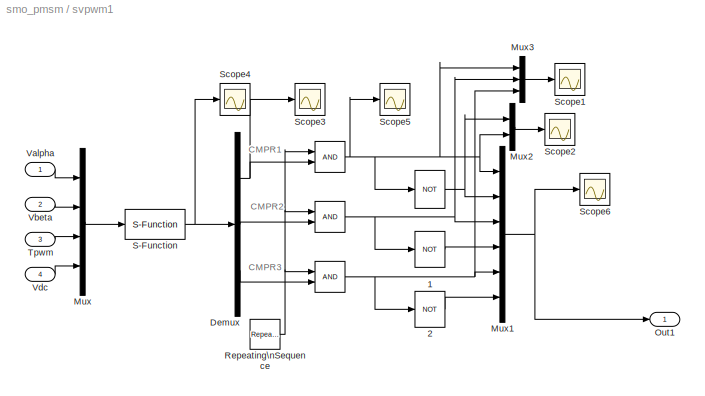
BLOCK [SubSystem] svpwm1
  FunctionWithSeparateData = off
  MaskHideContents = off
  MinAlgLoopOccurrences = off
  Opaque = off
  Ports = [4, 1]
  PropExecContextOutsideSubsystem = off
  RTWSystemCode = Auto
  RequestExecContextInheritance = off
  SID = 416
BLOCK [RelationalOperator] svpwm1/ 
  InputSameDT = off
  Ports = [2, 1]
  SID = 421
  ZeroCross = off
BLOCK [RelationalOperator] svpwm1/  
  InputSameDT = off
  LogicOutDataTypeMode = boolean
  OutDataTypeStr = boolean
  Ports = [2, 1]
  SID = 422
BLOCK [RelationalOperator] svpwm1/   
  InputSameDT = off
  LogicOutDataTypeMode = boolean
  OutDataTypeStr = boolean
  Ports = [2, 1]
  SID = 423
BLOCK [Logic] svpwm1/    
  AllPortsSameDT = off
  Inputs = 1
  Operator = NOT
  OutDataTypeMode = boolean
  OutDataTypeStr = boolean
  Ports = [1, 1]
  SID = 424
BLOCK [Logic] svpwm1/    1
  AllPortsSameDT = off
  Inputs = 1
  Operator = NOT
  OutDataTypeMode = boolean
  OutDataTypeStr = boolean
  Ports = [1, 1]
  SID = 425
BLOCK [Logic] svpwm1/    2
  AllPortsSameDT = off
  Inputs = 1
  Operator = NOT
  OutDataTypeMode = boolean
  OutDataTypeStr = boolean
  Ports = [1, 1]
  SID = 426
BLOCK [Demux] svpwm1/Demux
  DisplayOption = bar
  Outputs = 3
  Ports = [1, 3]
  SID = 427
BLOCK [Mux] svpwm1/Mux
  DisplayOption = bar
  Ports = [4, 1]
  SID = 428
BLOCK [Mux] svpwm1/Mux1
  DisplayOption = bar
  Inputs = 6
  Ports = [6, 1]
  SID = 429
BLOCK [Mux] svpwm1/Mux2
  DisplayOption = bar
  Inputs = 2
  Ports = [2, 1]
  SID = 430
BLOCK [Mux] svpwm1/Mux3
  DisplayOption = bar
  Inputs = 3
  Ports = [3, 1]
  SID = 431
BLOCK [Outport] svpwm1/Out1
  IconDisplay = Port number
  SID = 440
BLOCK [Reference] svpwm1/Repeating\nSequence  REF=simulink/Sources/Repeating\nSequence
  Ports = [0, 1]
  SID = 432
  SourceBlock = simulink/Sources/Repeating\nSequence
  SourceType = Repeating table
  rep_seq_t = [0 0.00005 0.0001]
  rep_seq_y = [0 0.00005 0]
BLOCK [S-Function] svpwm1/S-Function
  EnableBusSupport = off
  FunctionName = svpwm
  Ports = [1, 1]
  SID = 433
BLOCK [Scope] svpwm1/Scope1
  DataFormat = StructureWithTime
  Floating = off
  LimitDataPoints = off
  NumInputPorts = 1
  Ports = [1]
  SID = 434
  SampleTime = 0
  SaveName = ScopeData3
  TimeRange = 1
  YMax = 2
  YMin = -1
  ZoomMode = yonly
BLOCK [Scope] svpwm1/Scope2
  DataFormat = StructureWithTime
  Floating = off
  LimitDataPoints = off
  NumInputPorts = 1
  Ports = [1]
  SID = 435
  SampleTime = 0
  SaveName = ScopeData5
  TimeRange = 0.2
  YMax = 5.25e-005
  YMin = -2.5e-006
BLOCK [Scope] svpwm1/Scope3
  DataFormat = StructureWithTime
  Floating = off
  LimitDataPoints = off
  NumInputPorts = 1
  Ports = [1]
  SID = 436
  SampleTime = 0
  TimeRange = 0.2
  YMax = 5.25e-005
  YMin = -2.5e-006
BLOCK [Scope] svpwm1/Scope4
  DataFormat = StructureWithTime
  Floating = off
  LimitDataPoints = off
  NumInputPorts = 1
  Ports = [1]
  SID = 437
  SampleTime = 0
  SaveName = ScopeData6
  TimeRange = 0.2
  YMax = 5.25e-005
  YMin = -2.5e-006
  ZoomMode = xonly
BLOCK [Scope] svpwm1/Scope5
  DataFormat = StructureWithTime
  Floating = off
  LimitDataPoints = off
  NumInputPorts = 1
  Ports = [1]
  SID = 438
  SampleTime = 0
  SaveName = ScopeData2
  TimeRange = 0.2
  YMax = 5.25e-005
  YMin = -2.5e-006
BLOCK [Scope] svpwm1/Scope6
  DataFormat = StructureWithTime
  Floating = off
  LimitDataPoints = off
  NumInputPorts = 1
  Ports = [1]
  SID = 439
  SampleTime = 0
  SaveName = ScopeData8
  TimeRange = 0.2
  YMax = 5.25e-005
  YMin = -2.5e-006
BLOCK [Inport] svpwm1/Tpwm
  IconDisplay = Port number
  Port = 3
  SID = 419
BLOCK [Inport] svpwm1/Valpha
  IconDisplay = Port number
  SID = 417
BLOCK [Inport] svpwm1/Vbeta
  IconDisplay = Port number
  Port = 2
  SID = 418
BLOCK [Inport] svpwm1/Vdc
  IconDisplay = Port number
  Port = 4
  SID = 420
ANNOTATION (root): \n \n 速度、角度选择
ANNOTATION (root): \n \n 低通滤波
ANNOTATION (root): \n \n 加角度补偿
ANNOTATION (root): \n \n 滑模观测器
ANNOTATION (root): \n \n 数学方法
ANNOTATION (root): \n \n PLL
ANNOTATION svpwm1: CMPR1
ANNOTATION svpwm1: CMPR2
ANNOTATION svpwm1: CMPR3
LINE Add1:1 -> Math\nFunction:1
NET Add2:1 -> Mux:2, Sum19:2
NET Add:1 -> Discrete-Time\nIntegrator6:1, Gain12:1, Gain19:1
LINE Constant1:1 -> Zero-Order\nHold2:1
LINE Constant3:1 -> Zero-Order\nHold4:1
LINE Constant5:1 -> Zero-Order\nHold1:1
LINE Constant7:1 -> svpwm1:4
LINE Constant8:1 -> svpwm1:3
LINE Constant:1 -> Zero-Order\nHold3:1
NET Discrete-Time\nIntegrator1:1 -> Gain3:1, Sum7:1
NET Discrete-Time\nIntegrator2:1 -> Goto1:1, Scope7:1, Sum11:2
NET Discrete-Time\nIntegrator3:1 -> Goto2:1, Scope8:1, Sum12:2
NET Discrete-Time\nIntegrator4:1 -> Goto11:1, Mux8:1, Scope26:1, Sum13:2
LINE Discrete-Time\nIntegrator5:1 -> Add:2
NET Discrete-Time\nIntegrator6:1 -> Manual Switch4:2, Mux1:1, Sum16:1, Sum17:2, Trigonometric\nFunction2:1, Trigonometric\nFunction3:1
NET Discrete-Time\nIntegrator7:1 -> Goto4:1, Mux10:2, Scope30:1, Sum14:2
NET Discrete-Time\nIntegrator:1 -> Gain:1, Sum5:1
LINE From108:1 -> svpwm1:2
NET From10:1 -> Mux1:2, Sum16:2
NET From11:1 -> Scope12:1, Sum5:2
LINE From12:1 -> Sum7:2
NET From13:1 -> Manual Switch6:2, Switch1:3
LINE From14:1 -> Switch2:1
LINE From15:1 -> Manual Switch2:2
LINE From16:1 -> Manual Switch5:2
LINE From17:1 -> Manual Switch7:1
LINE From18:1 -> Manual Switch3:1
LINE From19:1 -> Manual Switch3:2
LINE From1:1 -> Sum2:1
LINE From20:1 -> Sum1:2
LINE From21:1 -> Add1:3
LINE From22:1 -> Add2:3
LINE From23:1 -> svpwm1:1
NET From24:1 -> Mux2:2, Sum18:2
LINE From25:1 -> Gain6:1
NET From26:1 -> Manual Switch7:2, Scope34:1, Switch2:3
NET From27:1 -> Zero-Order\nHold6:1, Zero-Order\nHold7:1
LINE From28:1 -> Mux7:2
LINE From29:1 -> Subsystem3:1
LINE From2:1 -> Sum3:1
NET From30:1 -> Scope29:1, Switch1:1
LINE From31:1 -> Manual Switch2:1
LINE From32:1 -> Manual Switch8:1
LINE From33:1 -> Trigonometric\nFunction:2
LINE From3:1 -> Gain9:1
LINE From4:1 -> Product1:1
LINE From5:1 -> Three-phase Inverter2:1
LINE From6:1 -> Manual Switch5:1
LINE From7:1 -> Subtract1:1
LINE From8:1 -> Permanent Magnet\nSynchronous Machine1:1
LINE From9:1 -> Subtract1:2
LINE From:1 -> Add1:1
LINE Gain10:1 -> Add:1
LINE Gain11:1 -> Discrete-Time\nIntegrator5:1
LINE Gain12:1 -> Gain13:1
NET Gain13:1 -> Mux10:1, Scope14:1, Sum14:1
LINE Gain14:1 -> Gain15:1
LINE Gain15:1 -> Saturation2:1
LINE Gain16:1 -> Discrete-Time\nIntegrator2:1
LINE Gain17:1 -> Discrete-Time\nIntegrator7:1
LINE Gain18:1 -> Discrete-Time\nIntegrator3:1
LINE Gain19:1 -> Trigonometric\nFunction4:1
NET Gain1:1 -> Sum11:1, Sum2:2
NET Gain20:1 -> Gain10:1, Gain11:1
LINE Gain22:1 -> Trigonometric\nFunction1:1
LINE Gain2:1 -> Sum4:1
LINE Gain3:1 -> Sum6:2
NET Gain4:1 -> Sum12:1, Sum3:2
LINE Gain5:1 -> Sum6:1
NET Gain6:1 -> Scope11:1, Trigonometric\nFunction:1
LINE Gain7:1 -> Discrete-Time\nIntegrator4:1
NET Gain8:1 -> Gain14:1, Gain22:1, Scope28:1
LINE Gain9:1 -> Product:1
LINE Gain:1 -> Sum4:2
LINE Manual Switch1:1 -> Goto9:1
LINE Manual Switch2:1 -> Goto6:1
LINE Manual Switch3:1 -> Goto7:1
LINE Manual Switch4:1 -> Goto10:1
LINE Manual Switch5:1 -> Goto12:1
LINE Manual Switch6:1 -> Manual Switch8:2
LINE Manual Switch7:1 -> Manual Switch1:2
NET Manual Switch8:1 -> Goto13:1, Scope18:1
LINE Math\nFunction:1 -> Add2:1
LINE Mux10:1 -> Scope48:1
LINE Mux1:1 -> Scope16:1
LINE Mux2:1 -> Scope3:1
LINE Mux7:1 -> Scope46:1
LINE Mux8:1 -> Scope27:1
LINE Mux9:1 -> Scope54:1
LINE Mux:1 -> Scope13:1
LINE Permanent Magnet\nSynchronous Machine1:1 -> Goto5:1
LINE Product1:1 -> Sum8:2
LINE Product:1 -> Sum8:1
NET Saturation1:1 -> Gain1:1, Scope36:1
NET Saturation2:1 -> Mux8:2, Scope22:1, Sum13:1
NET Saturation4:1 -> Scope4:1, Sum1:1, Zero-Order\nHold:1
NET Saturation6:1 -> Gain4:1, Scope40:1
LINE Signal Builder1/Demux:1 -> Signal Builder1/Signal 1:1
LINE Signal Builder1/FromWs:1 -> Signal Builder1/Demux:1
LINE Signal Builder1:1 -> Subsystem7:1
LINE Subsystem3/Bus\nSelector1:1 -> Subsystem3/Zero-Order\nHold2:1
LINE Subsystem3/Bus\nSelector1:2 -> Subsystem3/Zero-Order\nHold4:1
LINE Subsystem3/Bus\nSelector2:1 -> Subsystem3/Zero-Order\nHold3:1
LINE Subsystem3/Bus\nSelector2:2 -> Subsystem3/Zero-Order\nHold5:1
LINE Subsystem3/Constant:1 -> Subsystem3/Zero-Order\nHold1:1
NET Subsystem3/Gain1:1 -> Subsystem3/Scope5:1, Subsystem3/Tr3:1
NET Subsystem3/Gain2:1 -> Subsystem3/Scope3:1, Subsystem3/Tr1:1
NET Subsystem3/Gain3:1 -> Subsystem3/Scope1:1, Subsystem3/Tr2:1
NET Subsystem3/In1:1 -> Subsystem3/Bus\nSelector1:1, Subsystem3/Bus\nSelector2:1
LINE Subsystem3/Mux1:1 -> Subsystem3/Scope4:1
NET Subsystem3/Zero-Order\nHold1:1 -> Subsystem3/Scope2:1, Subsystem3/Tr4:1
NET Subsystem3/Zero-Order\nHold2:1 -> Subsystem3/Gain2:1, Subsystem3/Gain3:1
LINE Subsystem3/Zero-Order\nHold3:1 -> Subsystem3/Mux1:1
LINE Subsystem3/Zero-Order\nHold4:1 -> Subsystem3/Gain1:1
LINE Subsystem3/Zero-Order\nHold5:1 -> Subsystem3/Mux1:2
LINE Subsystem3:1 -> Goto23:1
LINE Subsystem3:2 -> Goto21:1
LINE Subsystem3:3 -> Goto22:1
LINE Subsystem3:4 -> Goto24:1
LINE Subsystem7/Add:1 -> Subsystem7/Goto4:1
LINE Subsystem7/Bus\nSelector4:1 -> Subsystem7/Mux5:1
LINE Subsystem7/Bus\nSelector4:2 -> Subsystem7/Mux5:2
LINE Subsystem7/Bus\nSelector4:3 -> Subsystem7/Mux5:3
LINE Subsystem7/Constant1:1 -> Subsystem7/Add:2
LINE Subsystem7/Constant2:1 -> Subsystem7/Zero-Order\nHold2:1
LINE Subsystem7/Constant8:1 -> Subsystem7/Zero-Order\nHold3:1
LINE Subsystem7/Constant:1 -> Subsystem7/Discrete-Time\nIntegrator:1
LINE Subsystem7/Discrete-Time\nIntegrator1:1 -> Subsystem7/Add:1
LINE Subsystem7/Discrete-Time\nIntegrator:1 -> Subsystem7/Discrete-Time\nIntegrator1:1
NET Subsystem7/Fcn19:1 -> Subsystem7/Goto1:1, Subsystem7/Mux1:1, Subsystem7/Scope5:1
NET Subsystem7/Fcn1:1 -> Subsystem7/Goto:1, Subsystem7/Mux3:1, Subsystem7/Sum2:2
NET Subsystem7/Fcn20:1 -> Subsystem7/Goto2:1, Subsystem7/Mux1:2, Subsystem7/Scope4:1
NET Subsystem7/Fcn2:1 -> Subsystem7/Goto3:1, Subsystem7/Mux3:2, Subsystem7/Scope13:1, Subsystem7/Sum1:2
LINE Subsystem7/From1:1 -> Subsystem7/Mux2:2
NET Subsystem7/From2:1 -> Subsystem7/Scope8:1, Subsystem7/Sum1:1
LINE Subsystem7/From3:1 -> Subsystem7/dq-alfa beta1:3
LINE Subsystem7/From4:1 -> Subsystem7/Sum:2
LINE Subsystem7/From9:1 -> Subsystem7/Bus\nSelector4:1
LINE Subsystem7/From:1 -> Subsystem7/Mux1:3
NET Subsystem7/Mux1:1 -> Subsystem7/Fcn1:1, Subsystem7/Fcn2:1
NET Subsystem7/Mux2:1 -> Subsystem7/Goto5:1, Subsystem7/Scope18:1
LINE Subsystem7/Mux3:1 -> Subsystem7/Scope11:1
LINE Subsystem7/Mux5:1 -> Subsystem7/Zero-Order\nHold1:1
LINE Subsystem7/Mux6:1 -> Subsystem7/Scope14:1
NET Subsystem7/PID/Add:1 -> Subsystem7/PID/Saturation1:1, Subsystem7/PID/Scope2:1
NET Subsystem7/PID/Discrete-Time\nIntegrator:1 -> Subsystem7/PID/Add:2, Subsystem7/PID/Scope1:1
LINE Subsystem7/PID/Gain1:1 -> Subsystem7/PID/Discrete-Time\nIntegrator:1
NET Subsystem7/PID/Gain:1 -> Subsystem7/PID/Add:1, Subsystem7/PID/Scope4:1
NET Subsystem7/PID/In1:1 -> Subsystem7/PID/Scope3:1, Subsystem7/PID/Zero-Order\nHold1:1
NET Subsystem7/PID/Saturation1:1 -> Subsystem7/PID/Out1:1, Subsystem7/PID/Scope:1
NET Subsystem7/PID/Zero-Order\nHold1:1 -> Subsystem7/PID/Gain1:1, Subsystem7/PID/Gain:1
NET Subsystem7/PID1/Add:1 -> Subsystem7/PID1/Saturation1:1, Subsystem7/PID1/Scope1:1
LINE Subsystem7/PID1/Discrete-Time\nIntegrator:1 -> Subsystem7/PID1/Add:2
LINE Subsystem7/PID1/Gain1:1 -> Subsystem7/PID1/Discrete-Time\nIntegrator:1
LINE Subsystem7/PID1/Gain:1 -> Subsystem7/PID1/Add:1
LINE Subsystem7/PID1/In1:1 -> Subsystem7/PID1/Zero-Order\nHold2:1
LINE Subsystem7/PID1/Saturation1:1 -> Subsystem7/PID1/Out1:1
NET Subsystem7/PID1/Zero-Order\nHold2:1 -> Subsystem7/PID1/Gain1:1, Subsystem7/PID1/Gain:1, Subsystem7/PID1/Scope3:1
NET Subsystem7/PID1:1 -> Subsystem7/Mux6:2, Subsystem7/Scope2:1, Subsystem7/dq-alfa beta1:1
NET Subsystem7/PID2/Add:1 -> Subsystem7/PID2/Saturation1:1, Subsystem7/PID2/Scope1:1
LINE Subsystem7/PID2/Discrete-Time\nIntegrator:1 -> Subsystem7/PID2/Add:2
LINE Subsystem7/PID2/Gain1:1 -> Subsystem7/PID2/Discrete-Time\nIntegrator:1
LINE Subsystem7/PID2/Gain:1 -> Subsystem7/PID2/Add:1
NET Subsystem7/PID2/In1:1 -> Subsystem7/PID2/Scope3:1, Subsystem7/PID2/Zero-Order\nHold2:1
NET Subsystem7/PID2/Saturation1:1 -> Subsystem7/PID2/Out1:1, Subsystem7/PID2/Scope2:1
NET Subsystem7/PID2/Zero-Order\nHold2:1 -> Subsystem7/PID2/Gain1:1, Subsystem7/PID2/Gain:1
NET Subsystem7/PID2:1 -> Subsystem7/Mux6:1, Subsystem7/Scope10:1, Subsystem7/dq-alfa beta1:2
NET Subsystem7/PID:1 -> Subsystem7/Goto6:1, Subsystem7/Scope6:1
NET Subsystem7/Sum1:1 -> Subsystem7/PID1:1, Subsystem7/Scope9:1
NET Subsystem7/Sum2:1 -> Subsystem7/PID2:1, Subsystem7/Scope3:1
NET Subsystem7/Sum:1 -> Subsystem7/PID:1, Subsystem7/Scope7:1
NET Subsystem7/Zero-Order\nHold1:1 -> Subsystem7/Fcn19:1, Subsystem7/Fcn20:1
LINE Subsystem7/Zero-Order\nHold2:1 -> Subsystem7/Goto7:1
LINE Subsystem7/Zero-Order\nHold3:1 -> Subsystem7/Sum2:1
NET Subsystem7/Zero-Order\nHold:1 -> Subsystem7/Mux2:1, Subsystem7/Sum:1
LINE Subsystem7/dq-alfa beta1/Fcn1:1 -> Subsystem7/dq-alfa beta1/vbeta:1
LINE Subsystem7/dq-alfa beta1/Fcn:1 -> Subsystem7/dq-alfa beta1/valfa:1
NET Subsystem7/dq-alfa beta1/Mux:1 -> Subsystem7/dq-alfa beta1/Fcn1:1, Subsystem7/dq-alfa beta1/Fcn:1
LINE Subsystem7/dq-alfa beta1/Teta:1 -> Subsystem7/dq-alfa beta1/Zero-Order\nHold2:1
LINE Subsystem7/dq-alfa beta1/Trigonometric\nFunction1:1 -> Subsystem7/dq-alfa beta1/Mux:4
LINE Subsystem7/dq-alfa beta1/Trigonometric\nFunction:1 -> Subsystem7/dq-alfa beta1/Mux:3
LINE Subsystem7/dq-alfa beta1/Zero-Order\nHold1:1 -> Subsystem7/dq-alfa beta1/Mux:2
NET Subsystem7/dq-alfa beta1/Zero-Order\nHold2:1 -> Subsystem7/dq-alfa beta1/Trigonometric\nFunction1:1, Subsystem7/dq-alfa beta1/Trigonometric\nFunction:1
LINE Subsystem7/dq-alfa beta1/Zero-Order\nHold:1 -> Subsystem7/dq-alfa beta1/Mux:1
LINE Subsystem7/dq-alfa beta1/vd:1 -> Subsystem7/dq-alfa beta1/Zero-Order\nHold1:1
LINE Subsystem7/dq-alfa beta1/vq:1 -> Subsystem7/dq-alfa beta1/Zero-Order\nHold:1
NET Subsystem7/dq-alfa beta1:1 -> Subsystem7/Out1:1, Subsystem7/Scope1:1
LINE Subsystem7/dq-alfa beta1:2 -> Subsystem7/Out2:1
LINE Subsystem7/n_ref:1 -> Subsystem7/Zero-Order\nHold:1
LINE Subsystem7:1 -> Goto48:1
LINE Subsystem7:2 -> Goto49:1
LINE Subtract1:1 -> Scope49:1
NET Sum10:1 -> Mux9:1, Scope2:1, Sum15:1, Switch:1, Switch:2
LINE Sum11:1 -> Gain16:1
LINE Sum12:1 -> Gain18:1
LINE Sum13:1 -> Gain7:1
LINE Sum14:1 -> Gain17:1
LINE Sum15:1 -> Switch:3
LINE Sum16:1 -> Scope35:1
NET Sum17:1 -> Manual Switch4:1, Mux2:1, Sum18:1
LINE Sum18:1 -> Scope6:1
LINE Sum19:1 -> Scope37:1
NET Sum1:1 -> Goto8:1, Mux:1, Scope1:1, Sum19:1
NET Sum2:1 -> Gain2:1, Scope38:1
NET Sum3:1 -> Gain5:1, Scope39:1
LINE Sum4:1 -> Discrete-Time\nIntegrator:1
LINE Sum5:1 -> Saturation1:1
LINE Sum6:1 -> Discrete-Time\nIntegrator1:1
NET Sum7:1 -> Saturation6:1, Scope41:1
LINE Sum8:1 -> Gain20:1
LINE Switch1:1 -> Manual Switch6:1
NET Switch2:1 -> Manual Switch1:1, Scope23:1
NET Switch:1 -> Gain8:1, Scope25:1
NET Trigonometric\nFunction1:1 -> Goto3:1, Scope52:1
LINE Trigonometric\nFunction2:1 -> Product:2
LINE Trigonometric\nFunction3:1 -> Product1:2
LINE Trigonometric\nFunction4:1 -> Sum17:1
LINE Trigonometric\nFunction:1 -> Saturation4:1
NET Unit Delay:1 -> Mux9:2, Sum10:2
NET Voltage Measurement1:1 -> Goto20:1, Scope5:1
LINE Zero-Order\nHold1:1 -> Sum15:2
LINE Zero-Order\nHold2:1 -> Add1:2
LINE Zero-Order\nHold3:1 -> Math\nFunction:2
LINE Zero-Order\nHold4:1 -> Add2:2
LINE Zero-Order\nHold6:1 -> Switch1:2
LINE Zero-Order\nHold7:1 -> Switch2:2
NET Zero-Order\nHold:1 -> Mux9:3, Sum10:1, Unit Delay:1
NET state/Bus\nSelector1:1 -> state/Goto:1, state/Mux1:2
NET state/Bus\nSelector3:1 -> state/Mux2:1, state/Scope1:1
LINE state/Bus\nSelector3:2 -> state/Mux2:2
LINE state/Bus\nSelector3:3 -> state/Mux2:3
LINE state/Bus\nSelector:1 -> state/Mux:1
LINE state/Bus\nSelector:2 -> state/Mux:2
LINE state/From6:1 -> state/Zero-Order\nHold:1
LINE state/From7:1 -> state/Mux1:1
NET state/From:1 -> state/Scope3:1, state/speed_obs:1
NET state/Mux1:1 -> state/Scope4:1, state/Te:1
LINE state/Mux2:1 -> state/iabc:1
NET state/Mux:1 -> state/Scope2:1, state/idq:1
NET state/Zero-Order\nHold:1 -> state/Bus\nSelector1:1, state/Bus\nSelector3:1, state/Bus\nSelector:1
NET state:1 -> Scope15:1, Scope17:1
NET state:2 -> Scope15:2, Scope19:1
NET state:3 -> Scope15:3, Scope20:1
NET state:4 -> Mux7:1, Scope15:4, Scope21:1
LINE svpwm1/    1:1 -> svpwm1/Mux1:4
LINE svpwm1/    2:1 -> svpwm1/Mux1:6
NET svpwm1/    :1 -> svpwm1/Mux1:2, svpwm1/Mux2:1
NET svpwm1/   :1 -> svpwm1/    2:1, svpwm1/Mux1:5, svpwm1/Mux3:3
NET svpwm1/  :1 -> svpwm1/    1:1, svpwm1/Mux1:3, svpwm1/Mux3:2
NET svpwm1/ :1 -> svpwm1/    :1, svpwm1/Mux1:1, svpwm1/Mux2:2, svpwm1/Mux3:1, svpwm1/Scope5:1
NET svpwm1/Demux:1 -> svpwm1/ :2, svpwm1/Scope3:1
LINE svpwm1/Demux:2 -> svpwm1/  :2
LINE svpwm1/Demux:3 -> svpwm1/   :2
NET svpwm1/Mux1:1 -> svpwm1/Out1:1, svpwm1/Scope6:1
LINE svpwm1/Mux2:1 -> svpwm1/Scope2:1
LINE svpwm1/Mux3:1 -> svpwm1/Scope1:1
LINE svpwm1/Mux:1 -> svpwm1/S-Function:1
NET svpwm1/Repeating\nSequence:1 -> svpwm1/   :1, svpwm1/  :1, svpwm1/ :1
NET svpwm1/S-Function:1 -> svpwm1/Demux:1, svpwm1/Scope4:1
LINE svpwm1/Tpwm:1 -> svpwm1/Mux:3
LINE svpwm1/Valpha:1 -> svpwm1/Mux:1
LINE svpwm1/Vbeta:1 -> svpwm1/Mux:2
LINE svpwm1/Vdc:1 -> svpwm1/Mux:4
LINE svpwm1:1 -> Goto50:1
PLINE DC Voltage Source:LConn1 -- Three-phase Inverter2:RConn2
PLINE DC Voltage Source:RConn1 -- Three-phase Inverter2:RConn1
PNET net1: Permanent Magnet\nSynchronous Machine1:LConn1 -- Three-phase Inverter2:LConn1 -- Voltage Measurement1:LConn1
PNET net2: Permanent Magnet\nSynchronous Machine1:LConn2 -- Three-phase Inverter2:LConn2 -- Voltage Measurement1:LConn2
PLINE Permanent Magnet\nSynchronous Machine1:LConn3 -- Three-phase Inverter2:LConn3
note: NET lines group one-source signal fan-out (src -> all destinations, sorted); 1:1 wires keep LINE; PNET lines group multi-terminal physical nets as a canonical sorted terminal list (undirected conserving connections); 2-terminal nets keep the pairwise PLINE form
